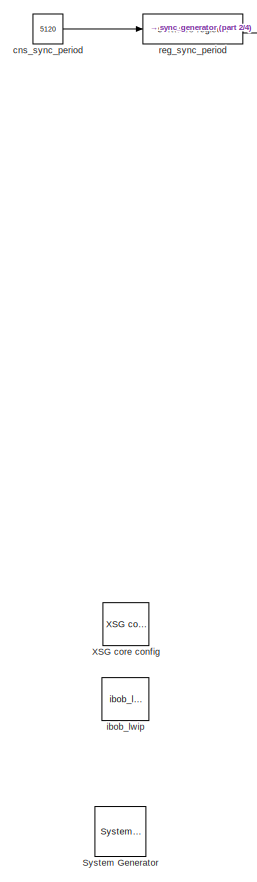
[diagram: root canvas - part 1/4, top left region]
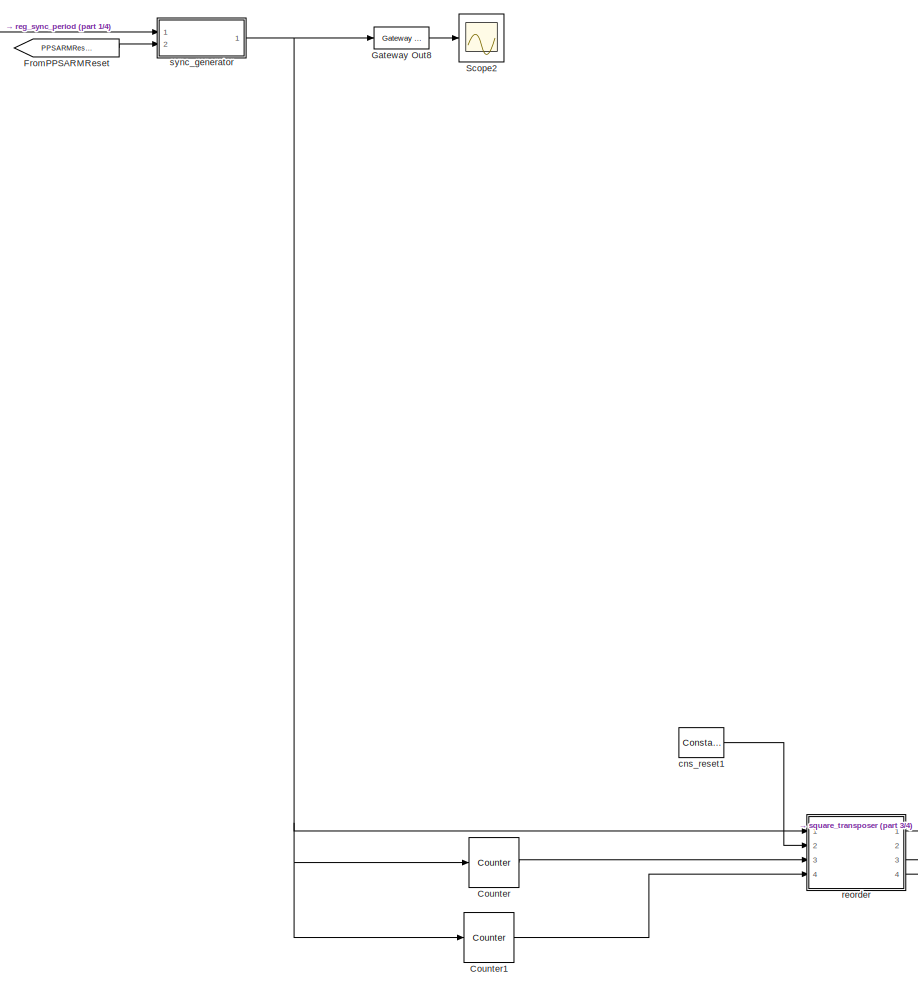
[diagram: root canvas - part 2/4, top center region]
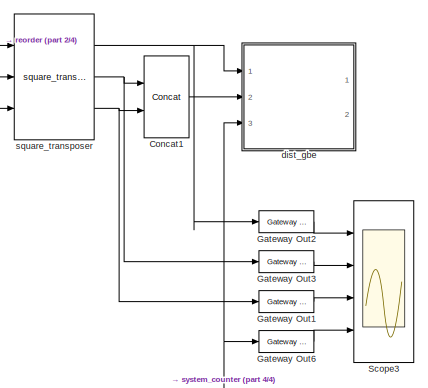
[diagram: root canvas - part 3/4, middle right region]
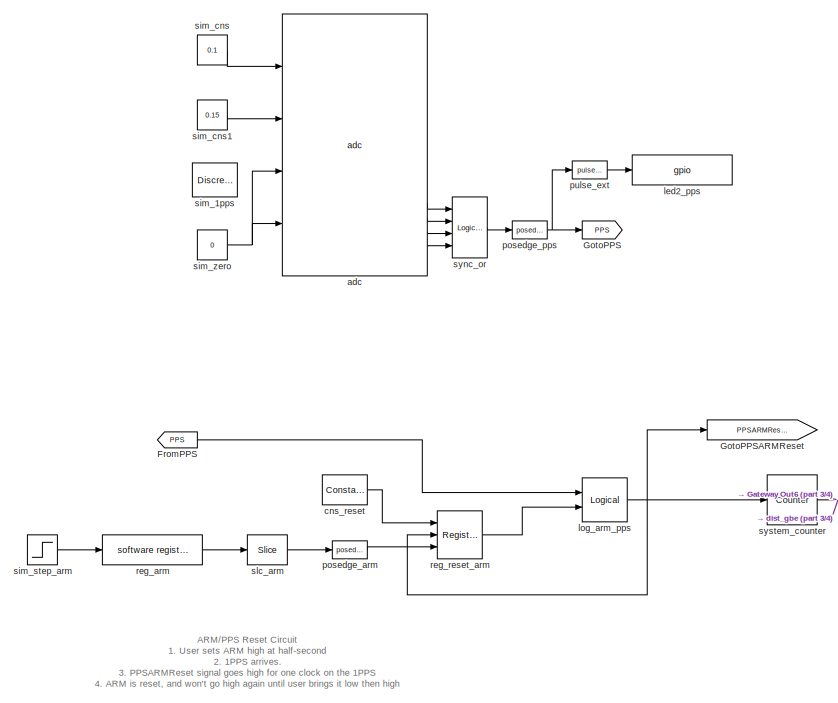
[diagram: root canvas - part 4/4, bottom left region]
MODEL counter_16ip_16ch
KIND model
BLOCK [Reference]  System Generator  REF=xbsIndex_r3/ System Generator
  AttributesFormatString = System\\nGenerator
  Ports = []
  ShowPortLabels = on
  SourceBlock = xbsIndex_r3/ System Generator
  SourceType = Xilinx System Generator
  Tag = genX
  UserData = DataTag0
  UserDataPersistent = on
  core_generation = According to Block Masks
  dbl_ovrd = According to Block Masks
  deprecated_control = off
  directory = ./counter_16ip_16ch/sysgen
  eval_field = 0
  incr_netlist = off
  package = ff1152
  part = xc2vp50
  run_coregen = off
  simulink_period = 1
  speed = -7
  synthesis_tool = XST
  sysclk_period = 5
  testbench = off
  trim_vbits = Everywhere in SubSystem
  xilinxfamily = Virtex2P
BLOCK [Reference] Concat1  REF=xbsIndex_r3/Concat
  Ports = [2, 1]
  SourceBlock = xbsIndex_r3/Concat
  SourceType = Xilinx Bus Concatenator
  dbl_ovrd = off
  explicit_period = off
  num_inputs = 2
  period = 1
BLOCK [Reference] Counter  REF=xbsIndex_r3/Counter
  Ports = [1, 1]
  SourceBlock = xbsIndex_r3/Counter
  SourceType = Xilinx Counter Block
  arith_type = Unsigned
  bin_pt = 0
  cnt_by_val = 2
  cnt_to = 14
  cnt_type = Count Limited
  dbl_ovrd = off
  en = off
  explicit_period = on
  gen_core = off
  load_pin = off
  n_bits = 32
  operation = Up
  period = 1
  rst = on
  show_param = off
  start_count = 0
  use_rpm = on
  xl_area = [0, 0, 0, 0, 0, 0, 0]
  xl_use_area = off
BLOCK [Reference] Counter1  REF=xbsIndex_r3/Counter
  Ports = [1, 1]
  SourceBlock = xbsIndex_r3/Counter
  SourceType = Xilinx Counter Block
  arith_type = Unsigned
  bin_pt = 0
  cnt_by_val = 2
  cnt_to = 15
  cnt_type = Count Limited
  dbl_ovrd = off
  en = off
  explicit_period = on
  gen_core = off
  load_pin = off
  n_bits = 32
  operation = Up
  period = 1
  rst = on
  show_param = off
  start_count = 1
  use_rpm = on
  xl_area = [0, 0, 0, 0, 0, 0, 0]
  xl_use_area = off
BLOCK [From] FromPPS
  CloseFcn = tagdialog Close
  GotoTag = PPS
BLOCK [From] FromPPSARMReset
  CloseFcn = tagdialog Close
  GotoTag = PPSARMReset
BLOCK [Reference] Gateway Out1  REF=xbsIndex_r3/Gateway Out
  LOCs = {}
  Ports = [1, 1]
  SourceBlock = xbsIndex_r3/Gateway Out
  SourceType = Xilinx Gateway Out
  arith_type = Boolean
  bin_pt = 6
  hdl_port = on
  locs_specified = off
  nbits = 8
  needs_fixed_name = off
  output_type = Double
  overflow = Wrap
  quantization = Truncate
  show_param = off
  timing_constraint = None
  xl_area = [0, 0, 0, 0, 0, 0, 0]
  xl_use_area = off
BLOCK [Reference] Gateway Out2  REF=xbsIndex_r3/Gateway Out
  LOCs = {}
  Ports = [1, 1]
  SourceBlock = xbsIndex_r3/Gateway Out
  SourceType = Xilinx Gateway Out
  arith_type = Boolean
  bin_pt = 6
  hdl_port = on
  locs_specified = off
  nbits = 8
  needs_fixed_name = off
  output_type = Double
  overflow = Wrap
  quantization = Truncate
  show_param = off
  timing_constraint = None
  xl_area = [0, 0, 0, 0, 0, 0, 0]
  xl_use_area = off
BLOCK [Reference] Gateway Out3  REF=xbsIndex_r3/Gateway Out
  LOCs = {}
  Ports = [1, 1]
  SourceBlock = xbsIndex_r3/Gateway Out
  SourceType = Xilinx Gateway Out
  arith_type = Boolean
  bin_pt = 6
  hdl_port = on
  locs_specified = off
  nbits = 8
  needs_fixed_name = off
  output_type = Double
  overflow = Wrap
  quantization = Truncate
  show_param = off
  timing_constraint = None
  xl_area = [0, 0, 0, 0, 0, 0, 0]
  xl_use_area = off
BLOCK [Reference] Gateway Out6  REF=xbsIndex_r3/Gateway Out
  LOCs = {}
  Ports = [1, 1]
  SourceBlock = xbsIndex_r3/Gateway Out
  SourceType = Xilinx Gateway Out
  arith_type = Boolean
  bin_pt = 6
  hdl_port = on
  locs_specified = off
  nbits = 8
  needs_fixed_name = off
  output_type = Double
  overflow = Wrap
  quantization = Truncate
  show_param = off
  timing_constraint = None
  xl_area = [0, 0, 0, 0, 0, 0, 0]
  xl_use_area = off
BLOCK [Reference] Gateway Out8  REF=xbsIndex_r3/Gateway Out
  LOCs = {}
  Ports = [1, 1]
  SourceBlock = xbsIndex_r3/Gateway Out
  SourceType = Xilinx Gateway Out
  arith_type = Boolean
  bin_pt = 6
  hdl_port = on
  locs_specified = off
  nbits = 8
  needs_fixed_name = off
  output_type = Double
  overflow = Wrap
  quantization = Truncate
  show_param = off
  timing_constraint = None
  xl_area = [0, 0, 0, 0, 0, 0, 0]
  xl_use_area = off
BLOCK [Goto] GotoPPS
  GotoTag = PPS
  TagVisibility = local
BLOCK [Goto] GotoPPSARMReset
  GotoTag = PPSARMReset
  TagVisibility = local
BLOCK [Scope] Scope2
  DataFormat = StructureWithTime
  LimitDataPoints = off
  NumInputPorts = 1
  Ports = [1]
  SaveName = ScopeData3
  YMax = 1
  YMin = -1
  ZoomMode = xonly
BLOCK [Scope] Scope3
  DataFormat = StructureWithTime
  LimitDataPoints = off
  NumInputPorts = 4
  Ports = [4]
  SaveName = ScopeData5
  TimeRange = 6000
  YMax = 1~65~1~65
  YMin = 0~0~-1~0
  ZoomMode = xonly
BLOCK [Reference] XSG core config  REF=xps_library/XSG core config  (lib defined in mdl_00b5cec29cd0, mdl_02ab6ecaa3d1, +5 more)
  Ports = []
  ShowPortLabels = on
  SourceBlock = xps_library/XSG core config
  SourceType = xsg core config
  Tag = xps:xsg
  clk_rate = 200
  clk_src = adc0_clk
  gpio_clk_bit_index = 0
  gpio_clk_io_group = iBOB:sma
  hw_sys = iBOB
  ibob_linux = off
  mpc_type = powerpc405
  sample_period = 1
  synthesis_tool = XST
BLOCK [Reference] adc  REF=xps_library/adc  (lib defined in mdl_00b5cec29cd0, mdl_02ab6ecaa3d1, +5 more)
  Ports = [4, 17]
  ShowPortLabels = on
  SourceBlock = xps_library/adc
  SourceType = adc
  Tag = xps:adc
  adc_brd = iBOB:adc0
  adc_clk_rate = 800
  adc_interleave = off
  sample_period = 1
BLOCK [Reference] cns_reset  REF=xbsIndex_r3/Constant
  Ports = [0, 1]
  SourceBlock = xbsIndex_r3/Constant
  SourceType = Xilinx Constant Block
  arith_type = Boolean
  bin_pt = 0
  carry = CIN
  const = 1
  dbl_ovrd = off
  equ = P=C
  explicit_period = on
  inp1 = P
  inp2 = PCIN>>17
  iostate = 0
  n_bits = 1
  opr = +
  opselect = C
  period = 1
BLOCK [Reference] cns_reset1  REF=xbsIndex_r3/Constant
  Ports = [0, 1]
  SourceBlock = xbsIndex_r3/Constant
  SourceType = Xilinx Constant Block
  arith_type = Boolean
  bin_pt = 0
  carry = CIN
  const = 1
  dbl_ovrd = off
  equ = P=C
  explicit_period = on
  inp1 = P
  inp2 = PCIN>>17
  iostate = 0
  n_bits = 1
  opr = +
  opselect = C
  period = 1
BLOCK [Constant] cns_sync_period
  Value = 5120
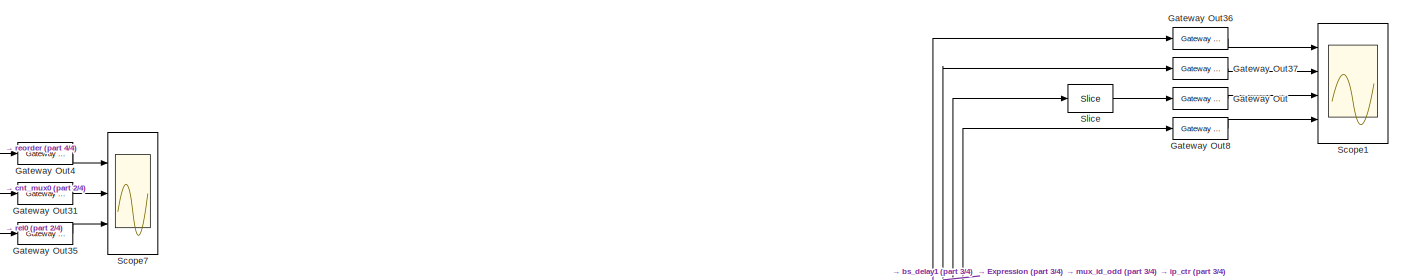
[diagram: dist_gbe - part 1/4, top right region]
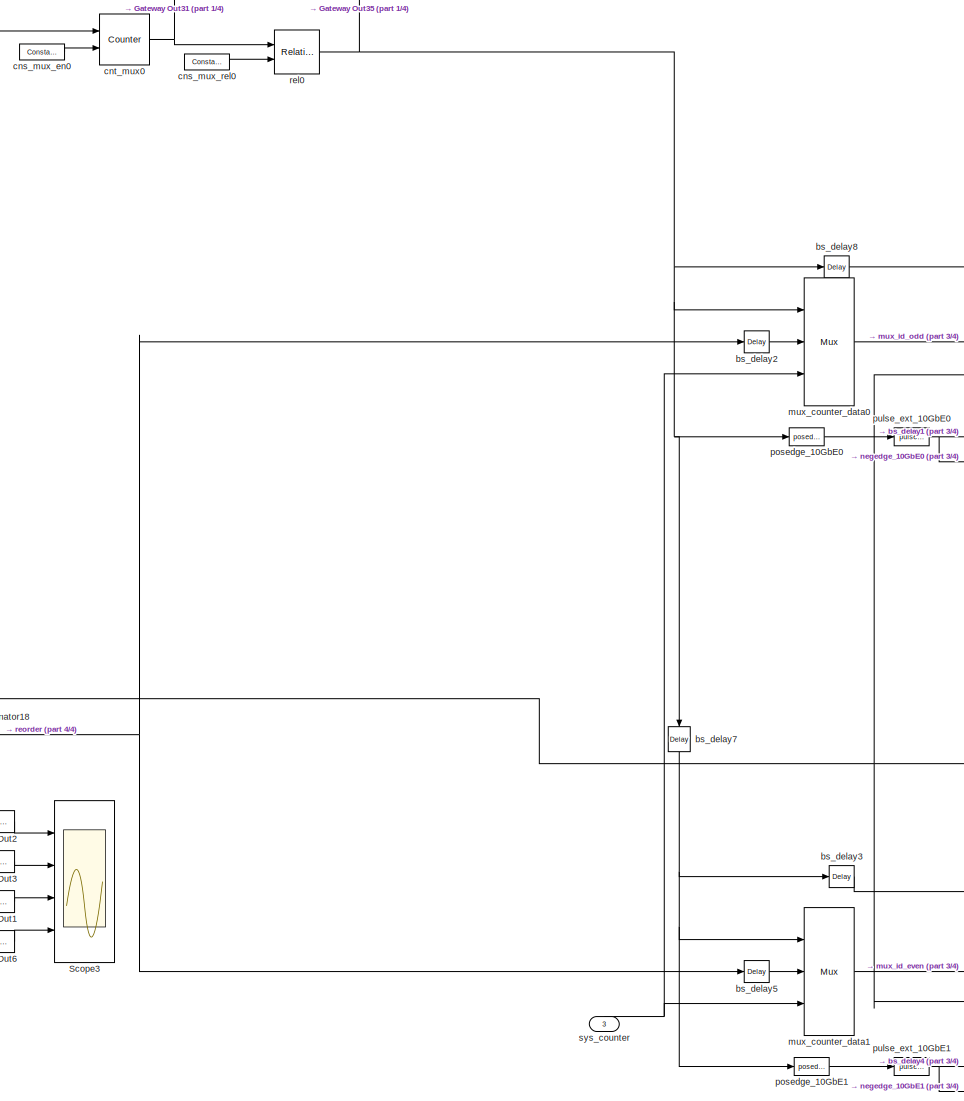
[diagram: dist_gbe - part 2/4, central region]
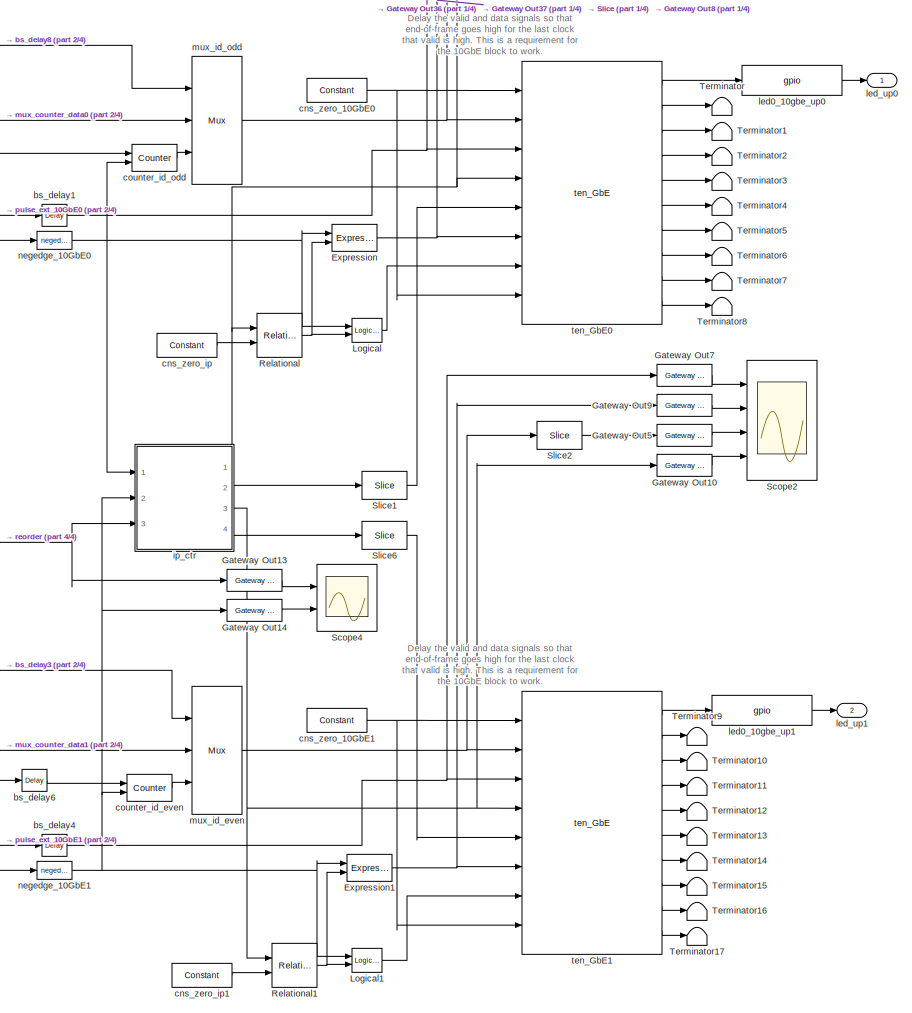
[diagram: dist_gbe - part 3/4, middle right region]
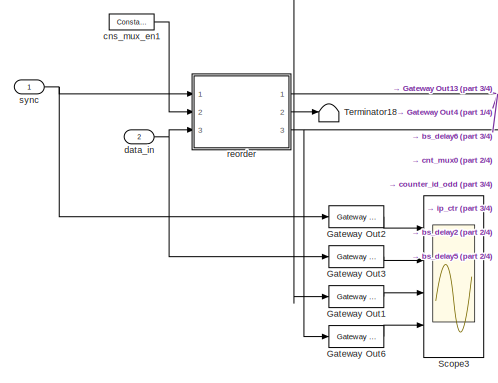
[diagram: dist_gbe - part 4/4, bottom left region]
BLOCK [SubSystem] dist_gbe
  AttributesFormatString = IPs=16\norder=5
  MaskCallbackString = ||
  MaskEnableString = on,on,on
  MaskIconFrame = on
  MaskIconOpaque = on
  MaskIconRotate = none
  MaskIconUnits = autoscale
  MaskInitialization = dist_gbe_init(gcb,...\n    'numcomputers', numcomputers,...\n    'numsamples', numsamples,...\n    'samplesperpacket', samplesperpacket)
  MaskPromptString = Num IPs (Must be power of 2)|Samples per spectrum (Number of clock cycles to generate 1 spectrum)|Samples per packet (Number of samples to put in a packet)
  MaskStyleString = edit,edit,edit
  MaskTabNameString = ,,
  MaskToolTipString = on,on,on
  MaskTunableValueString = off,off,off
  MaskType = dist_gbe
  MaskValueString = 16|16|64
  MaskVarAliasString = ,,
  MaskVariables = numcomputers=@1;numsamples=@2;samplesperpacket=@3;
  MaskVisibilityString = on,on,on
  MinAlgLoopOccurrences = off
  Ports = [3, 2]
  RTWSystemCode = Auto
  TreatAsAtomicUnit = off
  UserData = DataTag1
  UserDataPersistent = on
BLOCK [Reference] dist_gbe/Expression  REF=xbsIndex_r3/Expression
  Ports = [2, 1]
  SourceBlock = xbsIndex_r3/Expression
  SourceType = Xilinx Expression Block
  align_bp = on
  arith_type = Unsigned
  bin_pt = 2
  dbl_ovrd = off
  en = off
  explicit_period = off
  expression = a & ~b
  latency = 0
  n_bits = 8
  period = 1
  precision = Full
  show_param = off
  xl_area = [0, 0, 0, 0, 0, 0, 0]
  xl_use_area = off
BLOCK [Reference] dist_gbe/Expression1  REF=xbsIndex_r3/Expression
  Ports = [2, 1]
  SourceBlock = xbsIndex_r3/Expression
  SourceType = Xilinx Expression Block
  align_bp = on
  arith_type = Unsigned
  bin_pt = 2
  dbl_ovrd = off
  en = off
  explicit_period = off
  expression = a & ~b
  latency = 0
  n_bits = 8
  period = 1
  precision = Full
  show_param = off
  xl_area = [0, 0, 0, 0, 0, 0, 0]
  xl_use_area = off
BLOCK [Reference] dist_gbe/Gateway Out  REF=xbsIndex_r3/Gateway Out
  LOCs = {}
  Ports = [1, 1]
  SourceBlock = xbsIndex_r3/Gateway Out
  SourceType = Xilinx Gateway Out
  arith_type = Boolean
  bin_pt = 6
  hdl_port = on
  locs_specified = off
  nbits = 8
  needs_fixed_name = off
  output_type = Double
  overflow = Wrap
  quantization = Truncate
  show_param = off
  timing_constraint = None
  xl_area = [0, 0, 0, 0, 0, 0, 0]
  xl_use_area = off
BLOCK [Reference] dist_gbe/Gateway Out1  REF=xbsIndex_r3/Gateway Out
  LOCs = {}
  Ports = [1, 1]
  SourceBlock = xbsIndex_r3/Gateway Out
  SourceType = Xilinx Gateway Out
  arith_type = Boolean
  bin_pt = 6
  hdl_port = on
  locs_specified = off
  nbits = 8
  needs_fixed_name = off
  output_type = Double
  overflow = Wrap
  quantization = Truncate
  show_param = off
  timing_constraint = None
  xl_area = [0, 0, 0, 0, 0, 0, 0]
  xl_use_area = off
BLOCK [Reference] dist_gbe/Gateway Out10  REF=xbsIndex_r3/Gateway Out
  LOCs = {}
  Ports = [1, 1]
  SourceBlock = xbsIndex_r3/Gateway Out
  SourceType = Xilinx Gateway Out
  arith_type = Boolean
  bin_pt = 6
  hdl_port = on
  locs_specified = off
  nbits = 8
  needs_fixed_name = off
  output_type = Double
  overflow = Wrap
  quantization = Truncate
  show_param = off
  timing_constraint = None
  xl_area = [0, 0, 0, 0, 0, 0, 0]
  xl_use_area = off
BLOCK [Reference] dist_gbe/Gateway Out13  REF=xbsIndex_r3/Gateway Out
  LOCs = {}
  Ports = [1, 1]
  SourceBlock = xbsIndex_r3/Gateway Out
  SourceType = Xilinx Gateway Out
  arith_type = Boolean
  bin_pt = 6
  hdl_port = on
  locs_specified = off
  nbits = 8
  needs_fixed_name = off
  output_type = Double
  overflow = Wrap
  quantization = Truncate
  show_param = off
  timing_constraint = None
  xl_area = [0, 0, 0, 0, 0, 0, 0]
  xl_use_area = off
BLOCK [Reference] dist_gbe/Gateway Out14  REF=xbsIndex_r3/Gateway Out
  LOCs = {}
  Ports = [1, 1]
  SourceBlock = xbsIndex_r3/Gateway Out
  SourceType = Xilinx Gateway Out
  arith_type = Boolean
  bin_pt = 6
  hdl_port = on
  locs_specified = off
  nbits = 8
  needs_fixed_name = off
  output_type = Double
  overflow = Wrap
  quantization = Truncate
  show_param = off
  timing_constraint = None
  xl_area = [0, 0, 0, 0, 0, 0, 0]
  xl_use_area = off
BLOCK [Reference] dist_gbe/Gateway Out2  REF=xbsIndex_r3/Gateway Out
  LOCs = {}
  Ports = [1, 1]
  SourceBlock = xbsIndex_r3/Gateway Out
  SourceType = Xilinx Gateway Out
  arith_type = Boolean
  bin_pt = 6
  hdl_port = on
  locs_specified = off
  nbits = 8
  needs_fixed_name = off
  output_type = Double
  overflow = Wrap
  quantization = Truncate
  show_param = off
  timing_constraint = None
  xl_area = [0, 0, 0, 0, 0, 0, 0]
  xl_use_area = off
BLOCK [Reference] dist_gbe/Gateway Out3  REF=xbsIndex_r3/Gateway Out
  LOCs = {}
  Ports = [1, 1]
  SourceBlock = xbsIndex_r3/Gateway Out
  SourceType = Xilinx Gateway Out
  arith_type = Boolean
  bin_pt = 6
  hdl_port = on
  locs_specified = off
  nbits = 8
  needs_fixed_name = off
  output_type = Double
  overflow = Wrap
  quantization = Truncate
  show_param = off
  timing_constraint = None
  xl_area = [0, 0, 0, 0, 0, 0, 0]
  xl_use_area = off
BLOCK [Reference] dist_gbe/Gateway Out31  REF=xbsIndex_r3/Gateway Out
  LOCs = {}
  Ports = [1, 1]
  SourceBlock = xbsIndex_r3/Gateway Out
  SourceType = Xilinx Gateway Out
  arith_type = Boolean
  bin_pt = 6
  hdl_port = on
  locs_specified = off
  nbits = 8
  needs_fixed_name = off
  output_type = Double
  overflow = Wrap
  quantization = Truncate
  show_param = off
  timing_constraint = None
  xl_area = [0, 0, 0, 0, 0, 0, 0]
  xl_use_area = off
BLOCK [Reference] dist_gbe/Gateway Out35  REF=xbsIndex_r3/Gateway Out
  LOCs = {}
  Ports = [1, 1]
  SourceBlock = xbsIndex_r3/Gateway Out
  SourceType = Xilinx Gateway Out
  arith_type = Boolean
  bin_pt = 6
  hdl_port = on
  locs_specified = off
  nbits = 8
  needs_fixed_name = off
  output_type = Double
  overflow = Wrap
  quantization = Truncate
  show_param = off
  timing_constraint = None
  xl_area = [0, 0, 0, 0, 0, 0, 0]
  xl_use_area = off
BLOCK [Reference] dist_gbe/Gateway Out36  REF=xbsIndex_r3/Gateway Out
  LOCs = {}
  Ports = [1, 1]
  SourceBlock = xbsIndex_r3/Gateway Out
  SourceType = Xilinx Gateway Out
  arith_type = Boolean
  bin_pt = 6
  hdl_port = on
  locs_specified = off
  nbits = 8
  needs_fixed_name = off
  output_type = Double
  overflow = Wrap
  quantization = Truncate
  show_param = off
  timing_constraint = None
  xl_area = [0, 0, 0, 0, 0, 0, 0]
  xl_use_area = off
BLOCK [Reference] dist_gbe/Gateway Out37  REF=xbsIndex_r3/Gateway Out
  LOCs = {}
  Ports = [1, 1]
  SourceBlock = xbsIndex_r3/Gateway Out
  SourceType = Xilinx Gateway Out
  arith_type = Boolean
  bin_pt = 6
  hdl_port = on
  locs_specified = off
  nbits = 8
  needs_fixed_name = off
  output_type = Double
  overflow = Wrap
  quantization = Truncate
  show_param = off
  timing_constraint = None
  xl_area = [0, 0, 0, 0, 0, 0, 0]
  xl_use_area = off
BLOCK [Reference] dist_gbe/Gateway Out4  REF=xbsIndex_r3/Gateway Out
  LOCs = {}
  Ports = [1, 1]
  SourceBlock = xbsIndex_r3/Gateway Out
  SourceType = Xilinx Gateway Out
  arith_type = Boolean
  bin_pt = 6
  hdl_port = on
  locs_specified = off
  nbits = 8
  needs_fixed_name = off
  output_type = Double
  overflow = Wrap
  quantization = Truncate
  show_param = off
  timing_constraint = None
  xl_area = [0, 0, 0, 0, 0, 0, 0]
  xl_use_area = off
BLOCK [Reference] dist_gbe/Gateway Out5  REF=xbsIndex_r3/Gateway Out
  LOCs = {}
  Ports = [1, 1]
  SourceBlock = xbsIndex_r3/Gateway Out
  SourceType = Xilinx Gateway Out
  arith_type = Boolean
  bin_pt = 6
  hdl_port = on
  locs_specified = off
  nbits = 8
  needs_fixed_name = off
  output_type = Double
  overflow = Wrap
  quantization = Truncate
  show_param = off
  timing_constraint = None
  xl_area = [0, 0, 0, 0, 0, 0, 0]
  xl_use_area = off
BLOCK [Reference] dist_gbe/Gateway Out6  REF=xbsIndex_r3/Gateway Out
  LOCs = {}
  Ports = [1, 1]
  SourceBlock = xbsIndex_r3/Gateway Out
  SourceType = Xilinx Gateway Out
  arith_type = Boolean
  bin_pt = 6
  hdl_port = on
  locs_specified = off
  nbits = 8
  needs_fixed_name = off
  output_type = Double
  overflow = Wrap
  quantization = Truncate
  show_param = off
  timing_constraint = None
  xl_area = [0, 0, 0, 0, 0, 0, 0]
  xl_use_area = off
BLOCK [Reference] dist_gbe/Gateway Out7  REF=xbsIndex_r3/Gateway Out
  LOCs = {}
  Ports = [1, 1]
  SourceBlock = xbsIndex_r3/Gateway Out
  SourceType = Xilinx Gateway Out
  arith_type = Boolean
  bin_pt = 6
  hdl_port = on
  locs_specified = off
  nbits = 8
  needs_fixed_name = off
  output_type = Double
  overflow = Wrap
  quantization = Truncate
  show_param = off
  timing_constraint = None
  xl_area = [0, 0, 0, 0, 0, 0, 0]
  xl_use_area = off
BLOCK [Reference] dist_gbe/Gateway Out8  REF=xbsIndex_r3/Gateway Out
  LOCs = {}
  Ports = [1, 1]
  SourceBlock = xbsIndex_r3/Gateway Out
  SourceType = Xilinx Gateway Out
  arith_type = Boolean
  bin_pt = 6
  hdl_port = on
  locs_specified = off
  nbits = 8
  needs_fixed_name = off
  output_type = Double
  overflow = Wrap
  quantization = Truncate
  show_param = off
  timing_constraint = None
  xl_area = [0, 0, 0, 0, 0, 0, 0]
  xl_use_area = off
BLOCK [Reference] dist_gbe/Gateway Out9  REF=xbsIndex_r3/Gateway Out
  LOCs = {}
  Ports = [1, 1]
  SourceBlock = xbsIndex_r3/Gateway Out
  SourceType = Xilinx Gateway Out
  arith_type = Boolean
  bin_pt = 6
  hdl_port = on
  locs_specified = off
  nbits = 8
  needs_fixed_name = off
  output_type = Double
  overflow = Wrap
  quantization = Truncate
  show_param = off
  timing_constraint = None
  xl_area = [0, 0, 0, 0, 0, 0, 0]
  xl_use_area = off
BLOCK [Reference] dist_gbe/Logical  REF=xbsIndex_r3/Logical
  Ports = [2, 1]
  SourceBlock = xbsIndex_r3/Logical
  SourceType = Xilinx Logical Block
  align_bp = on
  arith_type = Unsigned
  bin_pt = 2
  dbl_ovrd = off
  en = off
  explicit_period = off
  inputs = 2
  latency = 0
  logical_function = AND
  n_bits = 8
  period = 1
  precision = Full
  show_param = off
  xl_area = [0, 0, 0, 0, 0, 0, 0]
  xl_use_area = off
BLOCK [Reference] dist_gbe/Logical1  REF=xbsIndex_r3/Logical
  Ports = [2, 1]
  SourceBlock = xbsIndex_r3/Logical
  SourceType = Xilinx Logical Block
  align_bp = on
  arith_type = Unsigned
  bin_pt = 2
  dbl_ovrd = off
  en = off
  explicit_period = off
  inputs = 2
  latency = 0
  logical_function = AND
  n_bits = 8
  period = 1
  precision = Full
  show_param = off
  xl_area = [0, 0, 0, 0, 0, 0, 0]
  xl_use_area = off
BLOCK [Reference] dist_gbe/Relational  REF=xbsIndex_r3/Relational
  Ports = [2, 1]
  SourceBlock = xbsIndex_r3/Relational
  SourceType = Xilinx Relational Block
  dbl_ovrd = off
  en = off
  explicit_period = off
  latency = 1
  mode = a=b
  period = 1
  show_param = off
  xl_area = [0, 0, 0, 0, 0, 0, 0]
  xl_use_area = off
BLOCK [Reference] dist_gbe/Relational1  REF=xbsIndex_r3/Relational
  Ports = [2, 1]
  SourceBlock = xbsIndex_r3/Relational
  SourceType = Xilinx Relational Block
  dbl_ovrd = off
  en = off
  explicit_period = off
  latency = 1
  mode = a=b
  period = 1
  show_param = off
  xl_area = [0, 0, 0, 0, 0, 0, 0]
  xl_use_area = off
BLOCK [Scope] dist_gbe/Scope1
  DataFormat = StructureWithTime
  LimitDataPoints = off
  NumInputPorts = 4
  Ports = [4]
  TimeRange = 10000
  YMax = 1~1~16~4016
  YMin = 0~0~0~4000
  ZoomMode = xonly
BLOCK [Scope] dist_gbe/Scope2
  DataFormat = StructureWithTime
  LimitDataPoints = off
  NumInputPorts = 4
  Ports = [4]
  SaveName = ScopeData2
  TimeRange = 10000
  YMax = 1~1~10000~6.5e+010
  YMin = 0~0~0~0
  ZoomMode = xonly
BLOCK [Scope] dist_gbe/Scope3
  DataFormat = StructureWithTime
  LimitDataPoints = off
  NumInputPorts = 4
  Ports = [4]
  SaveName = ScopeData4
  TimeRange = 6000
  YMax = 1~65~1~65
  YMin = 0~0~-1~0
  ZoomMode = xonly
BLOCK [Scope] dist_gbe/Scope4
  DataFormat = StructureWithTime
  LimitDataPoints = off
  NumInputPorts = 2
  Ports = [2]
  SaveName = ScopeData6
  TimeRange = 10000
  YMax = 1~1
  YMin = 0~0
  ZoomMode = xonly
BLOCK [Scope] dist_gbe/Scope7
  DataFormat = StructureWithTime
  LimitDataPoints = off
  NumInputPorts = 3
  Ports = [3]
  SaveName = ScopeData1
  YMax = 1~275~1
  YMin = 0~0~0
  ZoomMode = xonly
BLOCK [Reference] dist_gbe/Slice  REF=xbsIndex_r3/Slice
  Ports = [1, 1]
  SourceBlock = xbsIndex_r3/Slice
  SourceType = Xilinx Slice Block
  base0 = LSB of Input
  base1 = MSB of Input
  bit0 = 0
  bit1 = 0
  boolean_output = off
  dbl_ovrd = off
  explicit_period = off
  mode = Lower Bit Location + Width
  nbits = 5
  period = 1
BLOCK [Reference] dist_gbe/Slice1  REF=xbsIndex_r3/Slice
  Ports = [1, 1]
  SourceBlock = xbsIndex_r3/Slice
  SourceType = Xilinx Slice Block
  base0 = LSB of Input
  base1 = MSB of Input
  bit0 = 0
  bit1 = 0
  boolean_output = off
  dbl_ovrd = off
  explicit_period = off
  mode = Lower Bit Location + Width
  nbits = 16
  period = 1
BLOCK [Reference] dist_gbe/Slice2  REF=xbsIndex_r3/Slice
  Ports = [1, 1]
  SourceBlock = xbsIndex_r3/Slice
  SourceType = Xilinx Slice Block
  base0 = LSB of Input
  base1 = MSB of Input
  bit0 = 0
  bit1 = 0
  boolean_output = off
  dbl_ovrd = off
  explicit_period = off
  mode = Lower Bit Location + Width
  nbits = 5
  period = 1
BLOCK [Reference] dist_gbe/Slice6  REF=xbsIndex_r3/Slice
  Ports = [1, 1]
  SourceBlock = xbsIndex_r3/Slice
  SourceType = Xilinx Slice Block
  base0 = LSB of Input
  base1 = MSB of Input
  bit0 = 0
  bit1 = 0
  boolean_output = off
  dbl_ovrd = off
  explicit_period = off
  mode = Lower Bit Location + Width
  nbits = 16
  period = 1
BLOCK [Terminator] dist_gbe/Terminator
BLOCK [Terminator] dist_gbe/Terminator1
BLOCK [Terminator] dist_gbe/Terminator10
BLOCK [Terminator] dist_gbe/Terminator11
BLOCK [Terminator] dist_gbe/Terminator12
BLOCK [Terminator] dist_gbe/Terminator13
BLOCK [Terminator] dist_gbe/Terminator14
BLOCK [Terminator] dist_gbe/Terminator15
BLOCK [Terminator] dist_gbe/Terminator16
BLOCK [Terminator] dist_gbe/Terminator17
BLOCK [Terminator] dist_gbe/Terminator18
BLOCK [Terminator] dist_gbe/Terminator2
BLOCK [Terminator] dist_gbe/Terminator3
BLOCK [Terminator] dist_gbe/Terminator4
BLOCK [Terminator] dist_gbe/Terminator5
BLOCK [Terminator] dist_gbe/Terminator6
BLOCK [Terminator] dist_gbe/Terminator7
BLOCK [Terminator] dist_gbe/Terminator8
BLOCK [Terminator] dist_gbe/Terminator9
BLOCK [Reference] dist_gbe/bs_delay1  REF=xbsIndex_r3/Delay
  Ports = [1, 1]
  SourceBlock = xbsIndex_r3/Delay
  SourceType = Xilinx Delay Block
  accept_only_valid = off
  dbl_ovrd = off
  en = off
  explicit_period = on
  init_zero = on
  latency = 1
  period = 1
  reg_retiming = off
  show_param = off
  xl_area = [0, 0, 0, 0, 0, 0, 0]
  xl_use_area = off
BLOCK [Reference] dist_gbe/bs_delay2  REF=xbsIndex_r3/Delay
  Ports = [1, 1]
  SourceBlock = xbsIndex_r3/Delay
  SourceType = Xilinx Delay Block
  accept_only_valid = off
  dbl_ovrd = off
  en = off
  explicit_period = on
  init_zero = on
  latency = 1
  period = 1
  reg_retiming = off
  show_param = off
  xl_area = [0, 0, 0, 0, 0, 0, 0]
  xl_use_area = off
BLOCK [Reference] dist_gbe/bs_delay3  REF=xbsIndex_r3/Delay
  Ports = [1, 1]
  SourceBlock = xbsIndex_r3/Delay
  SourceType = Xilinx Delay Block
  accept_only_valid = off
  dbl_ovrd = off
  en = off
  explicit_period = on
  init_zero = on
  latency = 2
  period = 1
  reg_retiming = off
  show_param = off
  xl_area = [0, 0, 0, 0, 0, 0, 0]
  xl_use_area = off
BLOCK [Reference] dist_gbe/bs_delay4  REF=xbsIndex_r3/Delay
  Ports = [1, 1]
  SourceBlock = xbsIndex_r3/Delay
  SourceType = Xilinx Delay Block
  accept_only_valid = off
  dbl_ovrd = off
  en = off
  explicit_period = on
  init_zero = on
  latency = 1
  period = 1
  reg_retiming = off
  show_param = off
  xl_area = [0, 0, 0, 0, 0, 0, 0]
  xl_use_area = off
BLOCK [Reference] dist_gbe/bs_delay5  REF=xbsIndex_r3/Delay
  Ports = [1, 1]
  SourceBlock = xbsIndex_r3/Delay
  SourceType = Xilinx Delay Block
  accept_only_valid = off
  dbl_ovrd = off
  en = off
  explicit_period = on
  init_zero = on
  latency = 1
  period = 1
  reg_retiming = off
  show_param = off
  xl_area = [0, 0, 0, 0, 0, 0, 0]
  xl_use_area = off
BLOCK [Reference] dist_gbe/bs_delay6  REF=xbsIndex_r3/Delay
  Ports = [1, 1]
  SourceBlock = xbsIndex_r3/Delay
  SourceType = Xilinx Delay Block
  accept_only_valid = off
  dbl_ovrd = off
  en = off
  explicit_period = on
  init_zero = on
  latency = 4
  period = 1
  reg_retiming = off
  show_param = off
  xl_area = [0, 0, 0, 0, 0, 0, 0]
  xl_use_area = off
BLOCK [Reference] dist_gbe/bs_delay7  REF=xbsIndex_r3/Delay
  Ports = [1, 1]
  SourceBlock = xbsIndex_r3/Delay
  SourceType = Xilinx Delay Block
  accept_only_valid = off
  dbl_ovrd = off
  en = off
  explicit_period = on
  init_zero = on
  latency = 64
  period = 1
  reg_retiming = off
  show_param = off
  xl_area = [0, 0, 0, 0, 0, 0, 0]
  xl_use_area = off
BLOCK [Reference] dist_gbe/bs_delay8  REF=xbsIndex_r3/Delay
  Ports = [1, 1]
  SourceBlock = xbsIndex_r3/Delay
  SourceType = Xilinx Delay Block
  accept_only_valid = off
  dbl_ovrd = off
  en = off
  explicit_period = on
  init_zero = on
  latency = 2
  period = 1
  reg_retiming = off
  show_param = off
  xl_area = [0, 0, 0, 0, 0, 0, 0]
  xl_use_area = off
BLOCK [Reference] dist_gbe/cns_mux_en0  REF=xbsIndex_r3/Constant
  Ports = [0, 1]
  SourceBlock = xbsIndex_r3/Constant
  SourceType = Xilinx Constant Block
  arith_type = Boolean
  bin_pt = 0
  carry = CIN
  const = 1
  dbl_ovrd = off
  equ = P=C
  explicit_period = on
  inp1 = P
  inp2 = PCIN>>17
  iostate = 0
  n_bits = 1
  opr = +
  opselect = C
  period = 1
BLOCK [Reference] dist_gbe/cns_mux_en1  REF=xbsIndex_r3/Constant
  Ports = [0, 1]
  SourceBlock = xbsIndex_r3/Constant
  SourceType = Xilinx Constant Block
  arith_type = Boolean
  bin_pt = 0
  carry = CIN
  const = 1
  dbl_ovrd = off
  equ = P=C
  explicit_period = on
  inp1 = P
  inp2 = PCIN>>17
  iostate = 0
  n_bits = 1
  opr = +
  opselect = C
  period = 1
BLOCK [Reference] dist_gbe/cns_mux_rel0  REF=xbsIndex_r3/Constant
  Ports = [0, 1]
  SourceBlock = xbsIndex_r3/Constant
  SourceType = Xilinx Constant Block
  arith_type = Unsigned
  bin_pt = 0
  carry = CIN
  const = 126
  dbl_ovrd = off
  equ = P=C
  explicit_period = on
  inp1 = P
  inp2 = PCIN>>17
  iostate = 0
  n_bits = 7
  opr = +
  opselect = C
  period = 1
BLOCK [Reference] dist_gbe/cns_zero_10GbE0  REF=xbsIndex_r3/Constant
  Ports = [0, 1]
  SourceBlock = xbsIndex_r3/Constant
  SourceType = Xilinx Constant Block
  arith_type = Boolean
  bin_pt = 0
  carry = CIN
  const = 0
  dbl_ovrd = off
  equ = P=C
  explicit_period = on
  inp1 = P
  inp2 = PCIN>>17
  iostate = 0
  n_bits = 32
  opr = +
  opselect = C
  period = 1
BLOCK [Reference] dist_gbe/cns_zero_10GbE1  REF=xbsIndex_r3/Constant
  Ports = [0, 1]
  SourceBlock = xbsIndex_r3/Constant
  SourceType = Xilinx Constant Block
  arith_type = Boolean
  bin_pt = 0
  carry = CIN
  const = 0
  dbl_ovrd = off
  equ = P=C
  explicit_period = on
  inp1 = P
  inp2 = PCIN>>17
  iostate = 0
  n_bits = 32
  opr = +
  opselect = C
  period = 1
BLOCK [Reference] dist_gbe/cns_zero_ip  REF=xbsIndex_r3/Constant
  Ports = [0, 1]
  SourceBlock = xbsIndex_r3/Constant
  SourceType = Xilinx Constant Block
  arith_type = Unsigned
  bin_pt = 0
  carry = CIN
  const = 0
  dbl_ovrd = off
  equ = P=C
  explicit_period = on
  inp1 = P
  inp2 = PCIN>>17
  iostate = 0
  n_bits = 32
  opr = +
  opselect = C
  period = 1
BLOCK [Reference] dist_gbe/cns_zero_ip1  REF=xbsIndex_r3/Constant
  Ports = [0, 1]
  SourceBlock = xbsIndex_r3/Constant
  SourceType = Xilinx Constant Block
  arith_type = Unsigned
  bin_pt = 0
  carry = CIN
  const = 0
  dbl_ovrd = off
  equ = P=C
  explicit_period = on
  inp1 = P
  inp2 = PCIN>>17
  iostate = 0
  n_bits = 32
  opr = +
  opselect = C
  period = 1
BLOCK [Reference] dist_gbe/cnt_mux0  REF=xbsIndex_r3/Counter
  Ports = [2, 1]
  SourceBlock = xbsIndex_r3/Counter
  SourceType = Xilinx Counter Block
  arith_type = Unsigned
  bin_pt = 0
  cnt_by_val = 1
  cnt_to = Inf
  cnt_type = Free Running
  dbl_ovrd = off
  en = on
  explicit_period = off
  gen_core = off
  load_pin = off
  n_bits = 7
  operation = Up
  period = 1
  rst = on
  show_param = off
  start_count = 0
  use_rpm = on
  xl_area = [0, 0, 0, 0, 0, 0, 0]
  xl_use_area = off
BLOCK [Reference] dist_gbe/counter_id_even  REF=xbsIndex_r3/Counter
  Ports = [2, 1]
  SourceBlock = xbsIndex_r3/Counter
  SourceType = Xilinx Counter Block
  arith_type = Unsigned
  bin_pt = 0
  cnt_by_val = 2
  cnt_to = 16
  cnt_type = Count Limited
  dbl_ovrd = off
  en = on
  explicit_period = off
  gen_core = off
  load_pin = off
  n_bits = 64
  operation = Up
  period = 1
  rst = on
  show_param = off
  start_count = 2
  use_rpm = on
  xl_area = [0, 0, 0, 0, 0, 0, 0]
  xl_use_area = off
BLOCK [Reference] dist_gbe/counter_id_odd  REF=xbsIndex_r3/Counter
  Ports = [2, 1]
  SourceBlock = xbsIndex_r3/Counter
  SourceType = Xilinx Counter Block
  arith_type = Unsigned
  bin_pt = 0
  cnt_by_val = 2
  cnt_to = 15
  cnt_type = Count Limited
  dbl_ovrd = off
  en = on
  explicit_period = off
  gen_core = off
  load_pin = off
  n_bits = 64
  operation = Up
  period = 1
  rst = on
  show_param = off
  start_count = 1
  use_rpm = on
  xl_area = [0, 0, 0, 0, 0, 0, 0]
  xl_use_area = off
BLOCK [Inport] dist_gbe/data_in
  IconDisplay = Port number
  LatchInput = off
  Port = 2
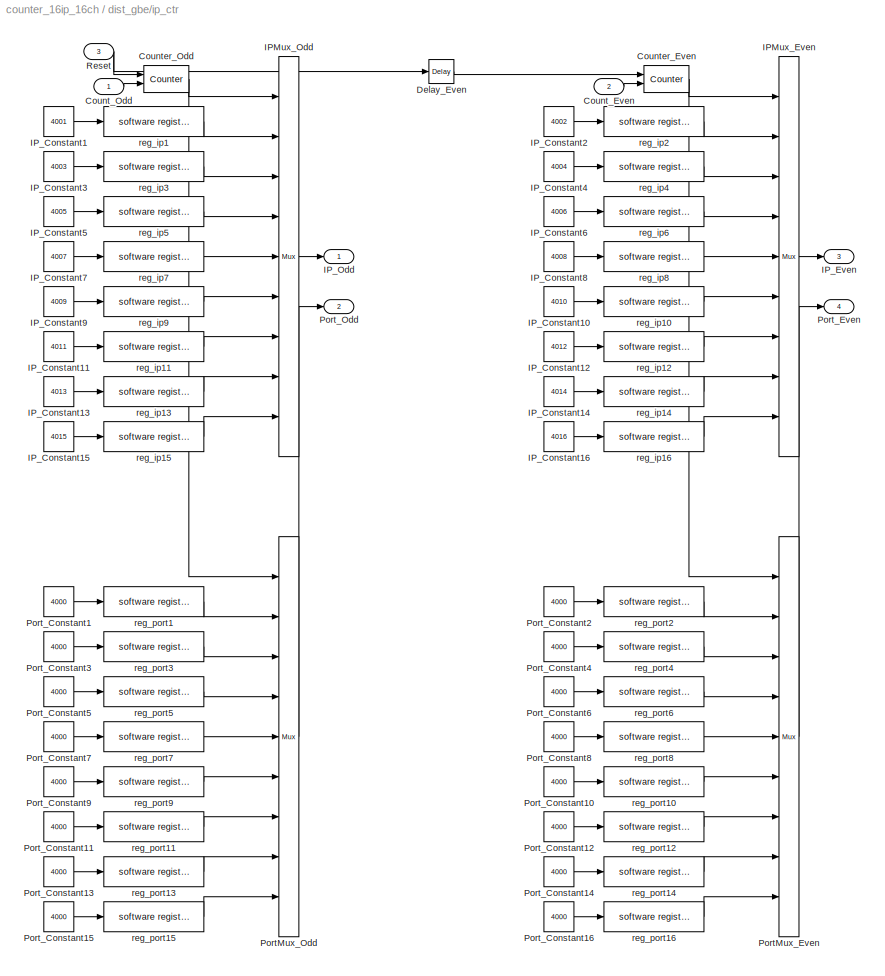
BLOCK [SubSystem] dist_gbe/ip_ctr
  AttributesFormatString = IPs=16
  MaskEnableString = on
  MaskIconFrame = on
  MaskIconOpaque = on
  MaskIconRotate = none
  MaskIconUnits = autoscale
  MaskInitialization = ip_ctr_init(gcb,...\n    'numcomputers',numcomputers)
  MaskPromptString = Num IPs (Must be power of 2)
  MaskStyleString = edit
  MaskToolTipString = on
  MaskTunableValueString = on
  MaskType = ip_ctr
  MaskValueString = 16
  MaskVariables = numcomputers=@1;
  MaskVisibilityString = on
  MinAlgLoopOccurrences = off
  Ports = [3, 4]
  RTWSystemCode = Auto
  TreatAsAtomicUnit = off
  UserData = DataTag2
  UserDataPersistent = on
BLOCK [Inport] dist_gbe/ip_ctr/Count_Even
  IconDisplay = Port number
  LatchInput = off
  Port = 2
BLOCK [Inport] dist_gbe/ip_ctr/Count_Odd
  IconDisplay = Port number
  LatchInput = off
  Port = 1
BLOCK [Reference] dist_gbe/ip_ctr/Counter_Even  REF=xbsIndex_r3/Counter
  Ports = [2, 1]
  SourceBlock = xbsIndex_r3/Counter
  SourceType = Xilinx Counter Block
  arith_type = Unsigned
  bin_pt = 0
  cnt_by_val = 1
  cnt_to = Inf
  cnt_type = Free Running
  dbl_ovrd = off
  en = on
  explicit_period = off
  gen_core = off
  load_pin = off
  n_bits = 3
  operation = Up
  period = 1
  rst = on
  show_param = off
  start_count = 0
  use_rpm = on
  xl_area = [0, 0, 0, 0, 0, 0, 0]
  xl_use_area = off
BLOCK [Reference] dist_gbe/ip_ctr/Counter_Odd  REF=xbsIndex_r3/Counter
  Ports = [2, 1]
  SourceBlock = xbsIndex_r3/Counter
  SourceType = Xilinx Counter Block
  arith_type = Unsigned
  bin_pt = 0
  cnt_by_val = 1
  cnt_to = Inf
  cnt_type = Free Running
  dbl_ovrd = off
  en = on
  explicit_period = off
  gen_core = off
  load_pin = off
  n_bits = 3
  operation = Up
  period = 1
  rst = on
  show_param = off
  start_count = 0
  use_rpm = on
  xl_area = [0, 0, 0, 0, 0, 0, 0]
  xl_use_area = off
BLOCK [Reference] dist_gbe/ip_ctr/Delay_Even  REF=xbsIndex_r3/Delay
  Ports = [1, 1]
  SourceBlock = xbsIndex_r3/Delay
  SourceType = Xilinx Delay Block
  accept_only_valid = off
  dbl_ovrd = off
  en = off
  explicit_period = off
  init_zero = on
  latency = 4
  period = 1
  reg_retiming = off
  show_param = off
  xl_area = [0, 0, 0, 0, 0, 0, 0]
  xl_use_area = off
BLOCK [Reference] dist_gbe/ip_ctr/IPMux_Even  REF=xbsIndex_r3/Mux
  Ports = [9, 1]
  SourceBlock = xbsIndex_r3/Mux
  SourceType = Xilinx Multiplexer Block
  arith_type = Signed  (2's comp)
  bin_pt = 2
  dbl_ovrd = off
  en = off
  explicit_period = off
  gen_core = off
  inputs = 8
  latency = 3
  mux_type = off
  n_bits = 8
  overflow = Wrap
  period = 1
  precision = Full
  quantization = Truncate
  show_param = off
  use_rpm = off
  xl_area = [0, 0, 0, 0, 0, 0, 0]
  xl_use_area = off
BLOCK [Reference] dist_gbe/ip_ctr/IPMux_Odd  REF=xbsIndex_r3/Mux
  Ports = [9, 1]
  SourceBlock = xbsIndex_r3/Mux
  SourceType = Xilinx Multiplexer Block
  arith_type = Signed  (2's comp)
  bin_pt = 2
  dbl_ovrd = off
  en = off
  explicit_period = off
  gen_core = off
  inputs = 8
  latency = 3
  mux_type = off
  n_bits = 8
  overflow = Wrap
  period = 1
  precision = Full
  quantization = Truncate
  show_param = off
  use_rpm = off
  xl_area = [0, 0, 0, 0, 0, 0, 0]
  xl_use_area = off
BLOCK [Constant] dist_gbe/ip_ctr/IP_Constant1
  Value = 4001
BLOCK [Constant] dist_gbe/ip_ctr/IP_Constant10
  Value = 4010
BLOCK [Constant] dist_gbe/ip_ctr/IP_Constant11
  Value = 4011
BLOCK [Constant] dist_gbe/ip_ctr/IP_Constant12
  Value = 4012
BLOCK [Constant] dist_gbe/ip_ctr/IP_Constant13
  Value = 4013
BLOCK [Constant] dist_gbe/ip_ctr/IP_Constant14
  Value = 4014
BLOCK [Constant] dist_gbe/ip_ctr/IP_Constant15
  Value = 4015
BLOCK [Constant] dist_gbe/ip_ctr/IP_Constant16
  Value = 4016
BLOCK [Constant] dist_gbe/ip_ctr/IP_Constant2
  Value = 4002
BLOCK [Constant] dist_gbe/ip_ctr/IP_Constant3
  Value = 4003
BLOCK [Constant] dist_gbe/ip_ctr/IP_Constant4
  Value = 4004
BLOCK [Constant] dist_gbe/ip_ctr/IP_Constant5
  Value = 4005
BLOCK [Constant] dist_gbe/ip_ctr/IP_Constant6
  Value = 4006
BLOCK [Constant] dist_gbe/ip_ctr/IP_Constant7
  Value = 4007
BLOCK [Constant] dist_gbe/ip_ctr/IP_Constant8
  Value = 4008
BLOCK [Constant] dist_gbe/ip_ctr/IP_Constant9
  Value = 4009
BLOCK [Outport] dist_gbe/ip_ctr/IP_Even
  BusOutputAsStruct = off
  IconDisplay = Port number
  Port = 3
BLOCK [Outport] dist_gbe/ip_ctr/IP_Odd
  BusOutputAsStruct = off
  IconDisplay = Port number
BLOCK [Reference] dist_gbe/ip_ctr/PortMux_Even  REF=xbsIndex_r3/Mux
  Ports = [9, 1]
  SourceBlock = xbsIndex_r3/Mux
  SourceType = Xilinx Multiplexer Block
  arith_type = Signed  (2's comp)
  bin_pt = 2
  dbl_ovrd = off
  en = off
  explicit_period = off
  gen_core = off
  inputs = 8
  latency = 3
  mux_type = off
  n_bits = 8
  overflow = Wrap
  period = 1
  precision = Full
  quantization = Truncate
  show_param = off
  use_rpm = off
  xl_area = [0, 0, 0, 0, 0, 0, 0]
  xl_use_area = off
BLOCK [Reference] dist_gbe/ip_ctr/PortMux_Odd  REF=xbsIndex_r3/Mux
  Ports = [9, 1]
  SourceBlock = xbsIndex_r3/Mux
  SourceType = Xilinx Multiplexer Block
  arith_type = Signed  (2's comp)
  bin_pt = 2
  dbl_ovrd = off
  en = off
  explicit_period = off
  gen_core = off
  inputs = 8
  latency = 3
  mux_type = off
  n_bits = 8
  overflow = Wrap
  period = 1
  precision = Full
  quantization = Truncate
  show_param = off
  use_rpm = off
  xl_area = [0, 0, 0, 0, 0, 0, 0]
  xl_use_area = off
BLOCK [Constant] dist_gbe/ip_ctr/Port_Constant1
  Value = 4000
BLOCK [Constant] dist_gbe/ip_ctr/Port_Constant10
  Value = 4000
BLOCK [Constant] dist_gbe/ip_ctr/Port_Constant11
  Value = 4000
BLOCK [Constant] dist_gbe/ip_ctr/Port_Constant12
  Value = 4000
BLOCK [Constant] dist_gbe/ip_ctr/Port_Constant13
  Value = 4000
BLOCK [Constant] dist_gbe/ip_ctr/Port_Constant14
  Value = 4000
BLOCK [Constant] dist_gbe/ip_ctr/Port_Constant15
  Value = 4000
BLOCK [Constant] dist_gbe/ip_ctr/Port_Constant16
  Value = 4000
BLOCK [Constant] dist_gbe/ip_ctr/Port_Constant2
  Value = 4000
BLOCK [Constant] dist_gbe/ip_ctr/Port_Constant3
  Value = 4000
BLOCK [Constant] dist_gbe/ip_ctr/Port_Constant4
  Value = 4000
BLOCK [Constant] dist_gbe/ip_ctr/Port_Constant5
  Value = 4000
BLOCK [Constant] dist_gbe/ip_ctr/Port_Constant6
  Value = 4000
BLOCK [Constant] dist_gbe/ip_ctr/Port_Constant7
  Value = 4000
BLOCK [Constant] dist_gbe/ip_ctr/Port_Constant8
  Value = 4000
BLOCK [Constant] dist_gbe/ip_ctr/Port_Constant9
  Value = 4000
BLOCK [Outport] dist_gbe/ip_ctr/Port_Even
  BusOutputAsStruct = off
  IconDisplay = Port number
  Port = 4
BLOCK [Outport] dist_gbe/ip_ctr/Port_Odd
  BusOutputAsStruct = off
  IconDisplay = Port number
  Port = 2
BLOCK [Inport] dist_gbe/ip_ctr/Reset
  IconDisplay = Port number
  LatchInput = off
  Port = 3
BLOCK [Reference] dist_gbe/ip_ctr/reg_ip1  REF=xps_library/software register  (lib defined in mdl_00b5cec29cd0, mdl_02ab6ecaa3d1, +5 more)
  Ports = [1, 1]
  ShowPortLabels = on
  SourceBlock = xps_library/software register
  Tag = xps:sw_reg
  arith_type = Unsigned
  bin_pt = 0
  bitwidth = 32
  gw_name = counter_16ip_16ch_dist_gbe_ip_ctr_reg_ip1_user_data_out
  io_dir = From Processor
  sample_period = 1
BLOCK [Reference] dist_gbe/ip_ctr/reg_ip10  REF=xps_library/software register  (lib defined in mdl_00b5cec29cd0, mdl_02ab6ecaa3d1, +5 more)
  Ports = [1, 1]
  ShowPortLabels = on
  SourceBlock = xps_library/software register
  Tag = xps:sw_reg
  arith_type = Unsigned
  bin_pt = 0
  bitwidth = 32
  gw_name = counter_16ip_16ch_dist_gbe_ip_ctr_reg_ip10_user_data_out
  io_dir = From Processor
  sample_period = 1
BLOCK [Reference] dist_gbe/ip_ctr/reg_ip11  REF=xps_library/software register  (lib defined in mdl_00b5cec29cd0, mdl_02ab6ecaa3d1, +5 more)
  Ports = [1, 1]
  ShowPortLabels = on
  SourceBlock = xps_library/software register
  Tag = xps:sw_reg
  arith_type = Unsigned
  bin_pt = 0
  bitwidth = 32
  gw_name = counter_16ip_16ch_dist_gbe_ip_ctr_reg_ip11_user_data_out
  io_dir = From Processor
  sample_period = 1
BLOCK [Reference] dist_gbe/ip_ctr/reg_ip12  REF=xps_library/software register  (lib defined in mdl_00b5cec29cd0, mdl_02ab6ecaa3d1, +5 more)
  Ports = [1, 1]
  ShowPortLabels = on
  SourceBlock = xps_library/software register
  Tag = xps:sw_reg
  arith_type = Unsigned
  bin_pt = 0
  bitwidth = 32
  gw_name = counter_16ip_16ch_dist_gbe_ip_ctr_reg_ip12_user_data_out
  io_dir = From Processor
  sample_period = 1
BLOCK [Reference] dist_gbe/ip_ctr/reg_ip13  REF=xps_library/software register  (lib defined in mdl_00b5cec29cd0, mdl_02ab6ecaa3d1, +5 more)
  Ports = [1, 1]
  ShowPortLabels = on
  SourceBlock = xps_library/software register
  Tag = xps:sw_reg
  arith_type = Unsigned
  bin_pt = 0
  bitwidth = 32
  gw_name = counter_16ip_16ch_dist_gbe_ip_ctr_reg_ip13_user_data_out
  io_dir = From Processor
  sample_period = 1
BLOCK [Reference] dist_gbe/ip_ctr/reg_ip14  REF=xps_library/software register  (lib defined in mdl_00b5cec29cd0, mdl_02ab6ecaa3d1, +5 more)
  Ports = [1, 1]
  ShowPortLabels = on
  SourceBlock = xps_library/software register
  Tag = xps:sw_reg
  arith_type = Unsigned
  bin_pt = 0
  bitwidth = 32
  gw_name = counter_16ip_16ch_dist_gbe_ip_ctr_reg_ip14_user_data_out
  io_dir = From Processor
  sample_period = 1
BLOCK [Reference] dist_gbe/ip_ctr/reg_ip15  REF=xps_library/software register  (lib defined in mdl_00b5cec29cd0, mdl_02ab6ecaa3d1, +5 more)
  Ports = [1, 1]
  ShowPortLabels = on
  SourceBlock = xps_library/software register
  Tag = xps:sw_reg
  arith_type = Unsigned
  bin_pt = 0
  bitwidth = 32
  gw_name = counter_16ip_16ch_dist_gbe_ip_ctr_reg_ip15_user_data_out
  io_dir = From Processor
  sample_period = 1
BLOCK [Reference] dist_gbe/ip_ctr/reg_ip16  REF=xps_library/software register  (lib defined in mdl_00b5cec29cd0, mdl_02ab6ecaa3d1, +5 more)
  Ports = [1, 1]
  ShowPortLabels = on
  SourceBlock = xps_library/software register
  Tag = xps:sw_reg
  arith_type = Unsigned
  bin_pt = 0
  bitwidth = 32
  gw_name = counter_16ip_16ch_dist_gbe_ip_ctr_reg_ip16_user_data_out
  io_dir = From Processor
  sample_period = 1
BLOCK [Reference] dist_gbe/ip_ctr/reg_ip2  REF=xps_library/software register  (lib defined in mdl_00b5cec29cd0, mdl_02ab6ecaa3d1, +5 more)
  Ports = [1, 1]
  ShowPortLabels = on
  SourceBlock = xps_library/software register
  Tag = xps:sw_reg
  arith_type = Unsigned
  bin_pt = 0
  bitwidth = 32
  gw_name = counter_16ip_16ch_dist_gbe_ip_ctr_reg_ip2_user_data_out
  io_dir = From Processor
  sample_period = 1
BLOCK [Reference] dist_gbe/ip_ctr/reg_ip3  REF=xps_library/software register  (lib defined in mdl_00b5cec29cd0, mdl_02ab6ecaa3d1, +5 more)
  Ports = [1, 1]
  ShowPortLabels = on
  SourceBlock = xps_library/software register
  Tag = xps:sw_reg
  arith_type = Unsigned
  bin_pt = 0
  bitwidth = 32
  gw_name = counter_16ip_16ch_dist_gbe_ip_ctr_reg_ip3_user_data_out
  io_dir = From Processor
  sample_period = 1
BLOCK [Reference] dist_gbe/ip_ctr/reg_ip4  REF=xps_library/software register  (lib defined in mdl_00b5cec29cd0, mdl_02ab6ecaa3d1, +5 more)
  Ports = [1, 1]
  ShowPortLabels = on
  SourceBlock = xps_library/software register
  Tag = xps:sw_reg
  arith_type = Unsigned
  bin_pt = 0
  bitwidth = 32
  gw_name = counter_16ip_16ch_dist_gbe_ip_ctr_reg_ip4_user_data_out
  io_dir = From Processor
  sample_period = 1
BLOCK [Reference] dist_gbe/ip_ctr/reg_ip5  REF=xps_library/software register  (lib defined in mdl_00b5cec29cd0, mdl_02ab6ecaa3d1, +5 more)
  Ports = [1, 1]
  ShowPortLabels = on
  SourceBlock = xps_library/software register
  Tag = xps:sw_reg
  arith_type = Unsigned
  bin_pt = 0
  bitwidth = 32
  gw_name = counter_16ip_16ch_dist_gbe_ip_ctr_reg_ip5_user_data_out
  io_dir = From Processor
  sample_period = 1
BLOCK [Reference] dist_gbe/ip_ctr/reg_ip6  REF=xps_library/software register  (lib defined in mdl_00b5cec29cd0, mdl_02ab6ecaa3d1, +5 more)
  Ports = [1, 1]
  ShowPortLabels = on
  SourceBlock = xps_library/software register
  Tag = xps:sw_reg
  arith_type = Unsigned
  bin_pt = 0
  bitwidth = 32
  gw_name = counter_16ip_16ch_dist_gbe_ip_ctr_reg_ip6_user_data_out
  io_dir = From Processor
  sample_period = 1
BLOCK [Reference] dist_gbe/ip_ctr/reg_ip7  REF=xps_library/software register  (lib defined in mdl_00b5cec29cd0, mdl_02ab6ecaa3d1, +5 more)
  Ports = [1, 1]
  ShowPortLabels = on
  SourceBlock = xps_library/software register
  Tag = xps:sw_reg
  arith_type = Unsigned
  bin_pt = 0
  bitwidth = 32
  gw_name = counter_16ip_16ch_dist_gbe_ip_ctr_reg_ip7_user_data_out
  io_dir = From Processor
  sample_period = 1
BLOCK [Reference] dist_gbe/ip_ctr/reg_ip8  REF=xps_library/software register  (lib defined in mdl_00b5cec29cd0, mdl_02ab6ecaa3d1, +5 more)
  Ports = [1, 1]
  ShowPortLabels = on
  SourceBlock = xps_library/software register
  Tag = xps:sw_reg
  arith_type = Unsigned
  bin_pt = 0
  bitwidth = 32
  gw_name = counter_16ip_16ch_dist_gbe_ip_ctr_reg_ip8_user_data_out
  io_dir = From Processor
  sample_period = 1
BLOCK [Reference] dist_gbe/ip_ctr/reg_ip9  REF=xps_library/software register  (lib defined in mdl_00b5cec29cd0, mdl_02ab6ecaa3d1, +5 more)
  Ports = [1, 1]
  ShowPortLabels = on
  SourceBlock = xps_library/software register
  Tag = xps:sw_reg
  arith_type = Unsigned
  bin_pt = 0
  bitwidth = 32
  gw_name = counter_16ip_16ch_dist_gbe_ip_ctr_reg_ip9_user_data_out
  io_dir = From Processor
  sample_period = 1
BLOCK [Reference] dist_gbe/ip_ctr/reg_port1  REF=xps_library/software register  (lib defined in mdl_00b5cec29cd0, mdl_02ab6ecaa3d1, +5 more)
  Ports = [1, 1]
  ShowPortLabels = on
  SourceBlock = xps_library/software register
  Tag = xps:sw_reg
  arith_type = Unsigned
  bin_pt = 0
  bitwidth = 32
  gw_name = counter_16ip_16ch_dist_gbe_ip_ctr_reg_port1_user_data_out
  io_dir = From Processor
  sample_period = 1
BLOCK [Reference] dist_gbe/ip_ctr/reg_port10  REF=xps_library/software register  (lib defined in mdl_00b5cec29cd0, mdl_02ab6ecaa3d1, +5 more)
  Ports = [1, 1]
  ShowPortLabels = on
  SourceBlock = xps_library/software register
  Tag = xps:sw_reg
  arith_type = Unsigned
  bin_pt = 0
  bitwidth = 32
  gw_name = counter_16ip_16ch_dist_gbe_ip_ctr_reg_port10_user_data_out
  io_dir = From Processor
  sample_period = 1
BLOCK [Reference] dist_gbe/ip_ctr/reg_port11  REF=xps_library/software register  (lib defined in mdl_00b5cec29cd0, mdl_02ab6ecaa3d1, +5 more)
  Ports = [1, 1]
  ShowPortLabels = on
  SourceBlock = xps_library/software register
  Tag = xps:sw_reg
  arith_type = Unsigned
  bin_pt = 0
  bitwidth = 32
  gw_name = counter_16ip_16ch_dist_gbe_ip_ctr_reg_port11_user_data_out
  io_dir = From Processor
  sample_period = 1
BLOCK [Reference] dist_gbe/ip_ctr/reg_port12  REF=xps_library/software register  (lib defined in mdl_00b5cec29cd0, mdl_02ab6ecaa3d1, +5 more)
  Ports = [1, 1]
  ShowPortLabels = on
  SourceBlock = xps_library/software register
  Tag = xps:sw_reg
  arith_type = Unsigned
  bin_pt = 0
  bitwidth = 32
  gw_name = counter_16ip_16ch_dist_gbe_ip_ctr_reg_port12_user_data_out
  io_dir = From Processor
  sample_period = 1
BLOCK [Reference] dist_gbe/ip_ctr/reg_port13  REF=xps_library/software register  (lib defined in mdl_00b5cec29cd0, mdl_02ab6ecaa3d1, +5 more)
  Ports = [1, 1]
  ShowPortLabels = on
  SourceBlock = xps_library/software register
  Tag = xps:sw_reg
  arith_type = Unsigned
  bin_pt = 0
  bitwidth = 32
  gw_name = counter_16ip_16ch_dist_gbe_ip_ctr_reg_port13_user_data_out
  io_dir = From Processor
  sample_period = 1
BLOCK [Reference] dist_gbe/ip_ctr/reg_port14  REF=xps_library/software register  (lib defined in mdl_00b5cec29cd0, mdl_02ab6ecaa3d1, +5 more)
  Ports = [1, 1]
  ShowPortLabels = on
  SourceBlock = xps_library/software register
  Tag = xps:sw_reg
  arith_type = Unsigned
  bin_pt = 0
  bitwidth = 32
  gw_name = counter_16ip_16ch_dist_gbe_ip_ctr_reg_port14_user_data_out
  io_dir = From Processor
  sample_period = 1
BLOCK [Reference] dist_gbe/ip_ctr/reg_port15  REF=xps_library/software register  (lib defined in mdl_00b5cec29cd0, mdl_02ab6ecaa3d1, +5 more)
  Ports = [1, 1]
  ShowPortLabels = on
  SourceBlock = xps_library/software register
  Tag = xps:sw_reg
  arith_type = Unsigned
  bin_pt = 0
  bitwidth = 32
  gw_name = counter_16ip_16ch_dist_gbe_ip_ctr_reg_port15_user_data_out
  io_dir = From Processor
  sample_period = 1
BLOCK [Reference] dist_gbe/ip_ctr/reg_port16  REF=xps_library/software register  (lib defined in mdl_00b5cec29cd0, mdl_02ab6ecaa3d1, +5 more)
  Ports = [1, 1]
  ShowPortLabels = on
  SourceBlock = xps_library/software register
  Tag = xps:sw_reg
  arith_type = Unsigned
  bin_pt = 0
  bitwidth = 32
  gw_name = counter_16ip_16ch_dist_gbe_ip_ctr_reg_port16_user_data_out
  io_dir = From Processor
  sample_period = 1
BLOCK [Reference] dist_gbe/ip_ctr/reg_port2  REF=xps_library/software register  (lib defined in mdl_00b5cec29cd0, mdl_02ab6ecaa3d1, +5 more)
  Ports = [1, 1]
  ShowPortLabels = on
  SourceBlock = xps_library/software register
  Tag = xps:sw_reg
  arith_type = Unsigned
  bin_pt = 0
  bitwidth = 32
  gw_name = counter_16ip_16ch_dist_gbe_ip_ctr_reg_port2_user_data_out
  io_dir = From Processor
  sample_period = 1
BLOCK [Reference] dist_gbe/ip_ctr/reg_port3  REF=xps_library/software register  (lib defined in mdl_00b5cec29cd0, mdl_02ab6ecaa3d1, +5 more)
  Ports = [1, 1]
  ShowPortLabels = on
  SourceBlock = xps_library/software register
  Tag = xps:sw_reg
  arith_type = Unsigned
  bin_pt = 0
  bitwidth = 32
  gw_name = counter_16ip_16ch_dist_gbe_ip_ctr_reg_port3_user_data_out
  io_dir = From Processor
  sample_period = 1
BLOCK [Reference] dist_gbe/ip_ctr/reg_port4  REF=xps_library/software register  (lib defined in mdl_00b5cec29cd0, mdl_02ab6ecaa3d1, +5 more)
  Ports = [1, 1]
  ShowPortLabels = on
  SourceBlock = xps_library/software register
  Tag = xps:sw_reg
  arith_type = Unsigned
  bin_pt = 0
  bitwidth = 32
  gw_name = counter_16ip_16ch_dist_gbe_ip_ctr_reg_port4_user_data_out
  io_dir = From Processor
  sample_period = 1
BLOCK [Reference] dist_gbe/ip_ctr/reg_port5  REF=xps_library/software register  (lib defined in mdl_00b5cec29cd0, mdl_02ab6ecaa3d1, +5 more)
  Ports = [1, 1]
  ShowPortLabels = on
  SourceBlock = xps_library/software register
  Tag = xps:sw_reg
  arith_type = Unsigned
  bin_pt = 0
  bitwidth = 32
  gw_name = counter_16ip_16ch_dist_gbe_ip_ctr_reg_port5_user_data_out
  io_dir = From Processor
  sample_period = 1
BLOCK [Reference] dist_gbe/ip_ctr/reg_port6  REF=xps_library/software register  (lib defined in mdl_00b5cec29cd0, mdl_02ab6ecaa3d1, +5 more)
  Ports = [1, 1]
  ShowPortLabels = on
  SourceBlock = xps_library/software register
  Tag = xps:sw_reg
  arith_type = Unsigned
  bin_pt = 0
  bitwidth = 32
  gw_name = counter_16ip_16ch_dist_gbe_ip_ctr_reg_port6_user_data_out
  io_dir = From Processor
  sample_period = 1
BLOCK [Reference] dist_gbe/ip_ctr/reg_port7  REF=xps_library/software register  (lib defined in mdl_00b5cec29cd0, mdl_02ab6ecaa3d1, +5 more)
  Ports = [1, 1]
  ShowPortLabels = on
  SourceBlock = xps_library/software register
  Tag = xps:sw_reg
  arith_type = Unsigned
  bin_pt = 0
  bitwidth = 32
  gw_name = counter_16ip_16ch_dist_gbe_ip_ctr_reg_port7_user_data_out
  io_dir = From Processor
  sample_period = 1
BLOCK [Reference] dist_gbe/ip_ctr/reg_port8  REF=xps_library/software register  (lib defined in mdl_00b5cec29cd0, mdl_02ab6ecaa3d1, +5 more)
  Ports = [1, 1]
  ShowPortLabels = on
  SourceBlock = xps_library/software register
  Tag = xps:sw_reg
  arith_type = Unsigned
  bin_pt = 0
  bitwidth = 32
  gw_name = counter_16ip_16ch_dist_gbe_ip_ctr_reg_port8_user_data_out
  io_dir = From Processor
  sample_period = 1
BLOCK [Reference] dist_gbe/ip_ctr/reg_port9  REF=xps_library/software register  (lib defined in mdl_00b5cec29cd0, mdl_02ab6ecaa3d1, +5 more)
  Ports = [1, 1]
  ShowPortLabels = on
  SourceBlock = xps_library/software register
  Tag = xps:sw_reg
  arith_type = Unsigned
  bin_pt = 0
  bitwidth = 32
  gw_name = counter_16ip_16ch_dist_gbe_ip_ctr_reg_port9_user_data_out
  io_dir = From Processor
  sample_period = 1
BLOCK [Reference] dist_gbe/led0_10gbe_up0  REF=xps_library/gpio  (lib defined in mdl_00b5cec29cd0, mdl_02ab6ecaa3d1, +5 more)
  Ports = [1, 1]
  ShowPortLabels = on
  SourceBlock = xps_library/gpio
  SourceType = gpio
  Tag = xps:gpio
  arith_type = Boolean
  bin_pt = 0
  bit_index = 1
  bitwidth = 1
  io_dir = out
  io_group = iBOB:led
  reg_clk_phase = 0
  reg_iob = on
  sample_period = 1
  termination = None
  use_ddr = off
  use_single_ended = off
BLOCK [Reference] dist_gbe/led0_10gbe_up1  REF=xps_library/gpio  (lib defined in mdl_00b5cec29cd0, mdl_02ab6ecaa3d1, +5 more)
  Ports = [1, 1]
  ShowPortLabels = on
  SourceBlock = xps_library/gpio
  SourceType = gpio
  Tag = xps:gpio
  arith_type = Boolean
  bin_pt = 0
  bit_index = 2
  bitwidth = 1
  io_dir = out
  io_group = iBOB:led
  reg_clk_phase = 0
  reg_iob = on
  sample_period = 1
  termination = None
  use_ddr = off
  use_single_ended = off
BLOCK [Outport] dist_gbe/led_up0
  BusOutputAsStruct = off
  IconDisplay = Port number
BLOCK [Outport] dist_gbe/led_up1
  BusOutputAsStruct = off
  IconDisplay = Port number
  Port = 2
BLOCK [Reference] dist_gbe/mux_counter_data0  REF=xbsIndex_r3/Mux
  Ports = [3, 1]
  SourceBlock = xbsIndex_r3/Mux
  SourceType = Xilinx Multiplexer Block
  arith_type = Signed  (2's comp)
  bin_pt = 2
  dbl_ovrd = off
  en = off
  explicit_period = off
  gen_core = off
  inputs = 2
  latency = 1
  mux_type = off
  n_bits = 8
  overflow = Wrap
  period = 1
  precision = Full
  quantization = Truncate
  show_param = off
  use_rpm = off
  xl_area = [0, 0, 0, 0, 0, 0, 0]
  xl_use_area = off
BLOCK [Reference] dist_gbe/mux_counter_data1  REF=xbsIndex_r3/Mux
  Ports = [3, 1]
  SourceBlock = xbsIndex_r3/Mux
  SourceType = Xilinx Multiplexer Block
  arith_type = Signed  (2's comp)
  bin_pt = 2
  dbl_ovrd = off
  en = off
  explicit_period = off
  gen_core = off
  inputs = 2
  latency = 1
  mux_type = off
  n_bits = 8
  overflow = Wrap
  period = 1
  precision = Full
  quantization = Truncate
  show_param = off
  use_rpm = off
  xl_area = [0, 0, 0, 0, 0, 0, 0]
  xl_use_area = off
BLOCK [Reference] dist_gbe/mux_id_even  REF=xbsIndex_r3/Mux
  Ports = [3, 1]
  SourceBlock = xbsIndex_r3/Mux
  SourceType = Xilinx Multiplexer Block
  arith_type = Signed  (2's comp)
  bin_pt = 2
  dbl_ovrd = off
  en = off
  explicit_period = off
  gen_core = off
  inputs = 2
  latency = 1
  mux_type = off
  n_bits = 8
  overflow = Wrap
  period = 1
  precision = Full
  quantization = Truncate
  show_param = off
  use_rpm = off
  xl_area = [0, 0, 0, 0, 0, 0, 0]
  xl_use_area = off
BLOCK [Reference] dist_gbe/mux_id_odd  REF=xbsIndex_r3/Mux
  Ports = [3, 1]
  SourceBlock = xbsIndex_r3/Mux
  SourceType = Xilinx Multiplexer Block
  arith_type = Signed  (2's comp)
  bin_pt = 2
  dbl_ovrd = off
  en = off
  explicit_period = off
  gen_core = off
  inputs = 2
  latency = 1
  mux_type = off
  n_bits = 8
  overflow = Wrap
  period = 1
  precision = Full
  quantization = Truncate
  show_param = off
  use_rpm = off
  xl_area = [0, 0, 0, 0, 0, 0, 0]
  xl_use_area = off
BLOCK [Reference] dist_gbe/negedge_10GbE0  REF=casper_library/Misc/negedge  (lib defined in mdl_138b2fc3435f, mdl_4ed325b712b3, +2 more)
  Ports = [1, 1]
  ShowPortLabels = on
  SourceBlock = casper_library/Misc/negedge
  SourceType = negedge
  Tag = Rising Edge Detector
BLOCK [Reference] dist_gbe/negedge_10GbE1  REF=casper_library/Misc/negedge  (lib defined in mdl_138b2fc3435f, mdl_4ed325b712b3, +2 more)
  Ports = [1, 1]
  ShowPortLabels = on
  SourceBlock = casper_library/Misc/negedge
  SourceType = negedge
  Tag = Rising Edge Detector
BLOCK [Reference] dist_gbe/posedge_10GbE0  REF=casper_library/Misc/posedge  (lib defined in mdl_138b2fc3435f, mdl_4ed325b712b3, +2 more)
  Ports = [1, 1]
  ShowPortLabels = on
  SourceBlock = casper_library/Misc/posedge
  SourceType = posedge
  Tag = Rising Edge Detector
BLOCK [Reference] dist_gbe/posedge_10GbE1  REF=casper_library/Misc/posedge  (lib defined in mdl_138b2fc3435f, mdl_4ed325b712b3, +2 more)
  Ports = [1, 1]
  ShowPortLabels = on
  SourceBlock = casper_library/Misc/posedge
  SourceType = posedge
  Tag = Rising Edge Detector
BLOCK [Reference] dist_gbe/pulse_ext_10GbE0  REF=casper_library/Misc/pulse_ext  (lib defined in mdl_138b2fc3435f, mdl_4ed325b712b3, +2 more)
  Ports = [1, 1]
  ShowPortLabels = on
  SourceBlock = casper_library/Misc/pulse_ext
  SourceType = pulse_ext
  pulse_len = 66
BLOCK [Reference] dist_gbe/pulse_ext_10GbE1  REF=casper_library/Misc/pulse_ext  (lib defined in mdl_138b2fc3435f, mdl_4ed325b712b3, +2 more)
  Ports = [1, 1]
  ShowPortLabels = on
  SourceBlock = casper_library/Misc/pulse_ext
  SourceType = pulse_ext
  pulse_len = 66
BLOCK [Reference] dist_gbe/rel0  REF=xbsIndex_r3/Relational
  Ports = [2, 1]
  SourceBlock = xbsIndex_r3/Relational
  SourceType = Xilinx Relational Block
  dbl_ovrd = off
  en = off
  explicit_period = off
  latency = 1
  mode = a=b
  period = 1
  show_param = off
  xl_area = [0, 0, 0, 0, 0, 0, 0]
  xl_use_area = off
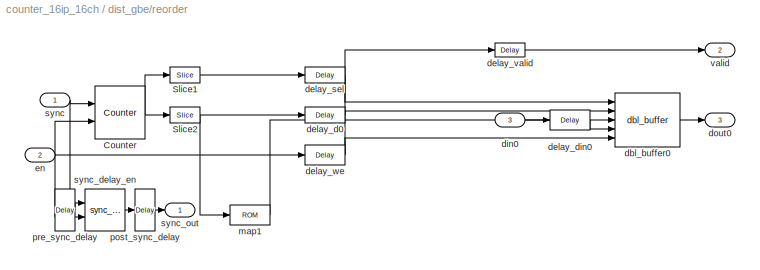
BLOCK [SubSystem] dist_gbe/reorder
  AncestorBlock = casper_library/Reorder/reorder
  AttributesFormatString = order=2
  MaskCallbackString = ||||
  MaskEnableString = on,on,on,on,on
  MaskIconFrame = on
  MaskIconOpaque = on
  MaskIconRotate = none
  MaskIconUnits = autoscale
  MaskInitialization = reorder_init(gcb, ...\n    'map', map, ...\n    'n_inputs', n_inputs, ...\n    'bram_latency', bram_latency, ...\n    'map_latency', map_latency, ...\n    'double_buffer', double_buffer);
  MaskPromptString = Output Order:|Number of inputs|BRAM Latency|Map Latency|Double Buffer
  MaskSelfModifiable = on
  MaskStyleString = edit,edit,edit,edit,edit
  MaskTabNameString = ,,,,
  MaskToolTipString = on,on,on,on,on
  MaskTunableValueString = on,on,on,on,on
  MaskType = reorder
  MaskValueString = [0 16 32 48 64 80 96 112 128 144 160 176 192 208 224 240 256 272 288 304 320 336 352 368 384 400 416 432 448 464 480 496 512 528 544 560 576 592 608 624 640 656 672 688 704 720 736 752 768 784 800 816 832 848 864 880 896 912 928 944 960 976 992 1008 1 17 33 49 65 81 97 113 129 145 161 177 193 209 225 241 257 273 289 305 321 337 353 369 385 401 417 433 449 465 481 497 513 529 545 561 577 593 609 62...<+3619ch>
  MaskVarAliasString = ,,,,
  MaskVariables = map=@1;n_inputs=@2;bram_latency=@3;map_latency=@4;double_buffer=@5;
  MaskVisibilityString = on,on,on,on,on
  MinAlgLoopOccurrences = off
  Ports = [3, 3]
  RTWSystemCode = Auto
  TreatAsAtomicUnit = off
  UserData = DataTag3
  UserDataPersistent = on
BLOCK [Reference] dist_gbe/reorder/Counter  REF=xbsIndex_r3/Counter
  Ports = [2, 1]
  SourceBlock = xbsIndex_r3/Counter
  SourceType = Xilinx Counter Block
  arith_type = Unsigned
  bin_pt = 0
  cnt_by_val = 1
  cnt_to = 2047
  cnt_type = Count Limited
  dbl_ovrd = off
  en = on
  explicit_period = off
  gen_core = off
  load_pin = off
  n_bits = 11
  operation = Up
  period = 1
  rst = on
  show_param = off
  start_count = 0
  use_rpm = on
  xl_area = [0, 0, 0, 0, 0, 0, 0]
  xl_use_area = off
BLOCK [Reference] dist_gbe/reorder/Slice1  REF=xbsIndex_r3/Slice
  Ports = [1, 1]
  SourceBlock = xbsIndex_r3/Slice
  SourceType = Xilinx Slice Block
  base0 = LSB of Input
  base1 = MSB of Input
  bit0 = 0
  bit1 = 0
  boolean_output = off
  dbl_ovrd = off
  explicit_period = off
  mode = Upper Bit Location + Width
  nbits = 1
  period = 1
BLOCK [Reference] dist_gbe/reorder/Slice2  REF=xbsIndex_r3/Slice
  Ports = [1, 1]
  SourceBlock = xbsIndex_r3/Slice
  SourceType = Xilinx Slice Block
  base0 = LSB of Input
  base1 = MSB of Input
  bit0 = 0
  bit1 = 0
  boolean_output = off
  dbl_ovrd = off
  explicit_period = off
  mode = Lower Bit Location + Width
  nbits = 10
  period = 1
BLOCK [Reference] dist_gbe/reorder/dbl_buffer0  REF=casper_library/Reorder/dbl_buffer  (lib defined in mdl_138b2fc3435f, mdl_4ed325b712b3, +2 more)
  Ports = [5, 1]
  ShowPortLabels = on
  SourceBlock = casper_library/Reorder/dbl_buffer
  SourceType = dbl_buffer
  depth = 1024
  latency = 2
BLOCK [Reference] dist_gbe/reorder/delay_d0  REF=xbsIndex_r3/Delay
  Ports = [1, 1]
  SourceBlock = xbsIndex_r3/Delay
  SourceType = Xilinx Delay Block
  accept_only_valid = off
  dbl_ovrd = off
  en = off
  explicit_period = off
  init_zero = on
  latency = 1
  period = 1
  reg_retiming = off
  show_param = off
  xl_area = [0, 0, 0, 0, 0, 0, 0]
  xl_use_area = off
BLOCK [Reference] dist_gbe/reorder/delay_din0  REF=xbsIndex_r3/Delay
  Ports = [1, 1]
  SourceBlock = xbsIndex_r3/Delay
  SourceType = Xilinx Delay Block
  accept_only_valid = off
  dbl_ovrd = off
  en = off
  explicit_period = off
  init_zero = on
  latency = 1
  period = 1
  reg_retiming = off
  show_param = off
  xl_area = [0, 0, 0, 0, 0, 0, 0]
  xl_use_area = off
BLOCK [Reference] dist_gbe/reorder/delay_sel  REF=xbsIndex_r3/Delay
  Ports = [1, 1]
  SourceBlock = xbsIndex_r3/Delay
  SourceType = Xilinx Delay Block
  accept_only_valid = off
  dbl_ovrd = off
  en = off
  explicit_period = off
  init_zero = on
  latency = 1
  period = 1
  reg_retiming = off
  show_param = off
  xl_area = [0, 0, 0, 0, 0, 0, 0]
  xl_use_area = off
BLOCK [Reference] dist_gbe/reorder/delay_valid  REF=xbsIndex_r3/Delay
  Ports = [1, 1]
  SourceBlock = xbsIndex_r3/Delay
  SourceType = Xilinx Delay Block
  accept_only_valid = off
  dbl_ovrd = off
  en = off
  explicit_period = off
  init_zero = on
  latency = 4
  period = 1
  reg_retiming = off
  show_param = off
  xl_area = [0, 0, 0, 0, 0, 0, 0]
  xl_use_area = off
BLOCK [Reference] dist_gbe/reorder/delay_we  REF=xbsIndex_r3/Delay
  Ports = [1, 1]
  SourceBlock = xbsIndex_r3/Delay
  SourceType = Xilinx Delay Block
  accept_only_valid = off
  dbl_ovrd = off
  en = off
  explicit_period = off
  init_zero = on
  latency = 1
  period = 1
  reg_retiming = off
  show_param = off
  xl_area = [0, 0, 0, 0, 0, 0, 0]
  xl_use_area = off
BLOCK [Inport] dist_gbe/reorder/din0
  IconDisplay = Port number
  LatchInput = off
  Port = 3
BLOCK [Outport] dist_gbe/reorder/dout0
  BusOutputAsStruct = off
  IconDisplay = Port number
  Port = 3
BLOCK [Inport] dist_gbe/reorder/en
  IconDisplay = Port number
  LatchInput = off
  Port = 2
BLOCK [Reference] dist_gbe/reorder/map1  REF=xbsIndex_r3/ROM
  Ports = [1, 1]
  SourceBlock = xbsIndex_r3/ROM
  SourceType = Xilinx Single Port Read-Only Memory
  arith_type = Unsigned
  bin_pt = 0
  dbl_ovrd = off
  depth = 1024
  distributed_mem = on
  en = off
  explicit_period = off
  gen_core = off
  initVector = [0 16 32 48 64 80 96 112 128 144 160 176 192 208 224 240 256 272 288 304 320 336 352 368 384 400 416 432 448 464 480 496 512 528 544 560 576 592 608 624 640 656 672 688 704 720 736 752 768 784 800 816 832 848 864 880 896 912 928 944 960 976 992 1008 1 17 33 49 65 81 97 113 129 145 161 177 193 209 225 241 257 273 289 305 321 337 353 369 385 401 417 433 449 465 481 497 513 529 545 561 577 593 609 62...<+3611ch>
  init_reg = 0
  init_zero = on
  latency = 1
  n_bits = 10
  period = 1
  rst = off
  show_param = off
  use_rpm = off
  xl_area = [0, 0, 0, 0, 0, 0, 0]
  xl_use_area = off
BLOCK [Reference] dist_gbe/reorder/post_sync_delay  REF=xbsIndex_r3/Delay
  Ports = [1, 1]
  SourceBlock = xbsIndex_r3/Delay
  SourceType = Xilinx Delay Block
  accept_only_valid = off
  dbl_ovrd = off
  en = off
  explicit_period = off
  init_zero = on
  latency = 4
  period = 1
  reg_retiming = off
  show_param = off
  xl_area = [0, 0, 0, 0, 0, 0, 0]
  xl_use_area = off
BLOCK [Reference] dist_gbe/reorder/pre_sync_delay  REF=xbsIndex_r3/Delay
  Ports = [1, 1]
  SourceBlock = xbsIndex_r3/Delay
  SourceType = Xilinx Delay Block
  accept_only_valid = off
  dbl_ovrd = off
  en = off
  explicit_period = off
  init_zero = on
  latency = 1
  period = 1
  reg_retiming = off
  show_param = off
  xl_area = [0, 0, 0, 0, 0, 0, 0]
  xl_use_area = off
BLOCK [Inport] dist_gbe/reorder/sync
  IconDisplay = Port number
  LatchInput = off
  Port = 1
BLOCK [Reference] dist_gbe/reorder/sync_delay_en  REF=casper_library/Delays/sync_delay_en  (lib defined in mdl_138b2fc3435f, mdl_4ed325b712b3, +2 more)
  DelayLen = 1024
  Ports = [2, 1]
  ShowPortLabels = on
  SourceBlock = casper_library/Delays/sync_delay_en
  SourceType = sync_delay_en
BLOCK [Outport] dist_gbe/reorder/sync_out
  BusOutputAsStruct = off
  IconDisplay = Port number
BLOCK [Outport] dist_gbe/reorder/valid
  BusOutputAsStruct = off
  IconDisplay = Port number
  Port = 2
BLOCK [Inport] dist_gbe/sync
  IconDisplay = Port number
  LatchInput = off
  Port = 1
BLOCK [Inport] dist_gbe/sys_counter
  IconDisplay = Port number
  LatchInput = off
  Port = 3
BLOCK [Reference] dist_gbe/ten_GbE0  REF=xps_library/ten_GbE  (lib defined in mdl_00b5cec29cd0, mdl_02ab6ecaa3d1, +5 more)
  Ports = [8, 10]
  ShowPortLabels = on
  SourceBlock = xps_library/ten_GbE
  SourceType = ten_GbE
  Tag = xps:tengbe
  mac_lite = on
  port = iBOB:0
  pre_emph = 2
  show_param = on
  swing = 800
BLOCK [Reference] dist_gbe/ten_GbE1  REF=xps_library/ten_GbE  (lib defined in mdl_00b5cec29cd0, mdl_02ab6ecaa3d1, +5 more)
  Ports = [8, 10]
  ShowPortLabels = on
  SourceBlock = xps_library/ten_GbE
  SourceType = ten_GbE
  Tag = xps:tengbe
  mac_lite = on
  port = iBOB:1
  pre_emph = 2
  show_param = on
  swing = 800
BLOCK [Reference] ibob_lwip  REF=xps_library/ibob_lwip  (lib defined in mdl_00b5cec29cd0, mdl_02ab6ecaa3d1, +5 more)
  Ports = []
  ShowPortLabels = on
  SourceBlock = xps_library/ibob_lwip
  SourceType = ibobethlite
BLOCK [Reference] led2_pps  REF=xps_library/gpio  (lib defined in mdl_00b5cec29cd0, mdl_02ab6ecaa3d1, +5 more)
  Ports = [1, 1]
  ShowPortLabels = on
  SourceBlock = xps_library/gpio
  SourceType = gpio
  Tag = xps:gpio
  arith_type = Boolean
  bin_pt = 0
  bit_index = 3
  bitwidth = 1
  io_dir = out
  io_group = iBOB:led
  reg_clk_phase = 0
  reg_iob = on
  sample_period = 1
  termination = None
  use_ddr = off
  use_single_ended = off
BLOCK [Reference] log_arm_pps  REF=xbsIndex_r3/Logical
  Ports = [2, 1]
  SourceBlock = xbsIndex_r3/Logical
  SourceType = Xilinx Logical Block
  align_bp = on
  arith_type = Unsigned
  bin_pt = 2
  dbl_ovrd = off
  en = off
  explicit_period = off
  inputs = 2
  latency = 0
  logical_function = AND
  n_bits = 8
  period = 1
  precision = Full
  show_param = off
  xl_area = [0, 0, 0, 0, 0, 0, 0]
  xl_use_area = off
BLOCK [Reference] posedge_arm  REF=casper_library/Misc/posedge  (lib defined in mdl_138b2fc3435f, mdl_4ed325b712b3, +2 more)
  Ports = [1, 1]
  ShowPortLabels = on
  SourceBlock = casper_library/Misc/posedge
  SourceType = posedge
  Tag = Rising Edge Detector
BLOCK [Reference] posedge_pps  REF=casper_library/Misc/posedge  (lib defined in mdl_138b2fc3435f, mdl_4ed325b712b3, +2 more)
  Ports = [1, 1]
  ShowPortLabels = on
  SourceBlock = casper_library/Misc/posedge
  SourceType = posedge
  Tag = Rising Edge Detector
BLOCK [Reference] pulse_ext  REF=casper_library/Misc/pulse_ext  (lib defined in mdl_138b2fc3435f, mdl_4ed325b712b3, +2 more)
  Ports = [1, 1]
  ShowPortLabels = on
  SourceBlock = casper_library/Misc/pulse_ext
  SourceType = pulse_ext
  pulse_len = 10000000
BLOCK [Reference] reg_arm  REF=xps_library/software register  (lib defined in mdl_00b5cec29cd0, mdl_02ab6ecaa3d1, +5 more)
  Ports = [1, 1]
  ShowPortLabels = on
  SourceBlock = xps_library/software register
  Tag = xps:sw_reg
  arith_type = Unsigned
  bin_pt = 0
  bitwidth = 32
  gw_name = counter_16ip_16ch_reg_arm_user_data_out
  io_dir = From Processor
  sample_period = 1
BLOCK [Reference] reg_reset_arm  REF=xbsIndex_r3/Register
  Ports = [3, 1]
  SourceBlock = xbsIndex_r3/Register
  SourceType = Xilinx Register Block
  dbl_ovrd = off
  en = on
  explicit_period = on
  init = 0
  out_en = off
  period = 1
  reg_only_valid = off
  rst = on
  show_param = off
  xl_area = [0, 0, 0, 0, 0, 0, 0]
  xl_use_area = off
BLOCK [Reference] reg_sync_period  REF=xps_library/software register  (lib defined in mdl_00b5cec29cd0, mdl_02ab6ecaa3d1, +5 more)
  Ports = [1, 1]
  ShowPortLabels = on
  SourceBlock = xps_library/software register
  Tag = xps:sw_reg
  arith_type = Unsigned
  bin_pt = 0
  bitwidth = 32
  gw_name = counter_16ip_16ch_reg_sync_period_user_data_out
  io_dir = From Processor
  sample_period = 1
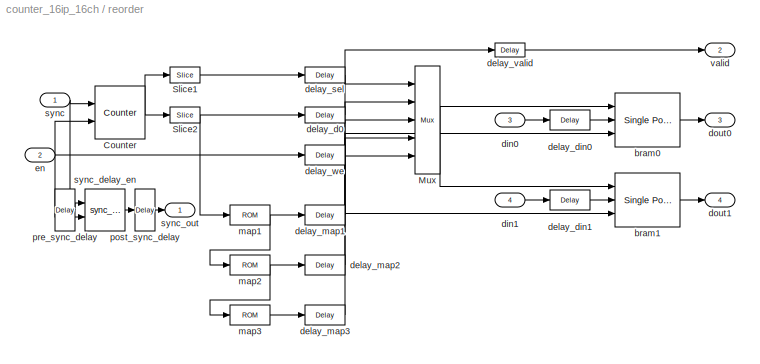
BLOCK [SubSystem] reorder
  AncestorBlock = casper_library/Reorder/reorder
  AttributesFormatString = order=4
  MaskCallbackString = ||||
  MaskEnableString = on,on,on,on,on
  MaskIconFrame = on
  MaskIconOpaque = on
  MaskIconRotate = none
  MaskIconUnits = autoscale
  MaskInitialization = reorder_init(gcb, ...\n    'map', map, ...\n    'n_inputs', n_inputs, ...\n    'bram_latency', bram_latency, ...\n    'map_latency', map_latency, ...\n    'double_buffer', double_buffer);
  MaskPromptString = Output Order:|Number of inputs|BRAM Latency|Map Latency|Double Buffer
  MaskSelfModifiable = on
  MaskStyleString = edit,edit,edit,edit,edit
  MaskTabNameString = ,,,,
  MaskToolTipString = on,on,on,on,on
  MaskTunableValueString = on,on,on,on,on
  MaskType = reorder
  MaskValueString = [0 8 1 9 2 10 3 11 4 12 5 13 6 14 7 15]|2|2|1|0
  MaskVarAliasString = ,,,,
  MaskVariables = map=@1;n_inputs=@2;bram_latency=@3;map_latency=@4;double_buffer=@5;
  MaskVisibilityString = on,on,on,on,on
  MinAlgLoopOccurrences = off
  Ports = [4, 4]
  RTWSystemCode = Auto
  TreatAsAtomicUnit = off
  UserData = DataTag4
  UserDataPersistent = on
BLOCK [Reference] reorder/Counter  REF=xbsIndex_r3/Counter
  Ports = [2, 1]
  SourceBlock = xbsIndex_r3/Counter
  SourceType = Xilinx Counter Block
  arith_type = Unsigned
  bin_pt = 0
  cnt_by_val = 1
  cnt_to = 63
  cnt_type = Count Limited
  dbl_ovrd = off
  en = on
  explicit_period = off
  gen_core = off
  load_pin = off
  n_bits = 6
  operation = Up
  period = 1
  rst = on
  show_param = off
  start_count = 0
  use_rpm = on
  xl_area = [0, 0, 0, 0, 0, 0, 0]
  xl_use_area = off
BLOCK [Reference] reorder/Mux  REF=xbsIndex_r3/Mux
  Ports = [5, 1]
  SourceBlock = xbsIndex_r3/Mux
  SourceType = Xilinx Multiplexer Block
  arith_type = Signed  (2's comp)
  bin_pt = 2
  dbl_ovrd = off
  en = off
  explicit_period = off
  gen_core = off
  inputs = 4
  latency = 1
  mux_type = off
  n_bits = 8
  overflow = Wrap
  period = 1
  precision = Full
  quantization = Truncate
  show_param = off
  use_rpm = off
  xl_area = [0, 0, 0, 0, 0, 0, 0]
  xl_use_area = off
BLOCK [Reference] reorder/Slice1  REF=xbsIndex_r3/Slice
  Ports = [1, 1]
  SourceBlock = xbsIndex_r3/Slice
  SourceType = Xilinx Slice Block
  base0 = LSB of Input
  base1 = MSB of Input
  bit0 = 0
  bit1 = 0
  boolean_output = off
  dbl_ovrd = off
  explicit_period = off
  mode = Upper Bit Location + Width
  nbits = 2
  period = 1
BLOCK [Reference] reorder/Slice2  REF=xbsIndex_r3/Slice
  Ports = [1, 1]
  SourceBlock = xbsIndex_r3/Slice
  SourceType = Xilinx Slice Block
  base0 = LSB of Input
  base1 = MSB of Input
  bit0 = 0
  bit1 = 0
  boolean_output = off
  dbl_ovrd = off
  explicit_period = off
  mode = Lower Bit Location + Width
  nbits = 4
  period = 1
BLOCK [Reference] reorder/bram0  REF=xbsIndex_r3/Single Port RAM
  Ports = [3, 1]
  SourceBlock = xbsIndex_r3/Single Port RAM
  SourceType = Xilinx Single Port Random Access Memory
  dbl_ovrd = off
  depth = 16
  distributed_mem = off
  en = off
  explicit_period = off
  gen_core = off
  initVector = sin(pi*(0:15)/16)
  init_reg = 0
  init_zero = on
  latency = 2
  period = 1
  rst = off
  show_param = off
  use_rpm = off
  write_mode = Read Before Write
  xl_area = [0, 0, 0, 0, 0, 0, 0]
  xl_use_area = off
BLOCK [Reference] reorder/bram1  REF=xbsIndex_r3/Single Port RAM
  Ports = [3, 1]
  SourceBlock = xbsIndex_r3/Single Port RAM
  SourceType = Xilinx Single Port Random Access Memory
  dbl_ovrd = off
  depth = 16
  distributed_mem = off
  en = off
  explicit_period = off
  gen_core = off
  initVector = sin(pi*(0:15)/16)
  init_reg = 0
  init_zero = on
  latency = 2
  period = 1
  rst = off
  show_param = off
  use_rpm = off
  write_mode = Read Before Write
  xl_area = [0, 0, 0, 0, 0, 0, 0]
  xl_use_area = off
BLOCK [Reference] reorder/delay_d0  REF=xbsIndex_r3/Delay
  Ports = [1, 1]
  SourceBlock = xbsIndex_r3/Delay
  SourceType = Xilinx Delay Block
  accept_only_valid = off
  dbl_ovrd = off
  en = off
  explicit_period = off
  init_zero = on
  latency = 3
  period = 1
  reg_retiming = off
  show_param = off
  xl_area = [0, 0, 0, 0, 0, 0, 0]
  xl_use_area = off
BLOCK [Reference] reorder/delay_din0  REF=xbsIndex_r3/Delay
  Ports = [1, 1]
  SourceBlock = xbsIndex_r3/Delay
  SourceType = Xilinx Delay Block
  accept_only_valid = off
  dbl_ovrd = off
  en = off
  explicit_period = off
  init_zero = on
  latency = 4
  period = 1
  reg_retiming = off
  show_param = off
  xl_area = [0, 0, 0, 0, 0, 0, 0]
  xl_use_area = off
BLOCK [Reference] reorder/delay_din1  REF=xbsIndex_r3/Delay
  Ports = [1, 1]
  SourceBlock = xbsIndex_r3/Delay
  SourceType = Xilinx Delay Block
  accept_only_valid = off
  dbl_ovrd = off
  en = off
  explicit_period = off
  init_zero = on
  latency = 4
  period = 1
  reg_retiming = off
  show_param = off
  xl_area = [0, 0, 0, 0, 0, 0, 0]
  xl_use_area = off
BLOCK [Reference] reorder/delay_map1  REF=xbsIndex_r3/Delay
  Ports = [1, 1]
  SourceBlock = xbsIndex_r3/Delay
  SourceType = Xilinx Delay Block
  accept_only_valid = off
  dbl_ovrd = off
  en = off
  explicit_period = off
  init_zero = on
  latency = 2*map_latency
  period = 1
  reg_retiming = off
  show_param = off
  xl_area = [0, 0, 0, 0, 0, 0, 0]
  xl_use_area = off
BLOCK [Reference] reorder/delay_map2  REF=xbsIndex_r3/Delay
  Ports = [1, 1]
  SourceBlock = xbsIndex_r3/Delay
  SourceType = Xilinx Delay Block
  accept_only_valid = off
  dbl_ovrd = off
  en = off
  explicit_period = off
  init_zero = on
  latency = 1*map_latency
  period = 1
  reg_retiming = off
  show_param = off
  xl_area = [0, 0, 0, 0, 0, 0, 0]
  xl_use_area = off
BLOCK [Reference] reorder/delay_map3  REF=xbsIndex_r3/Delay
  Ports = [1, 1]
  SourceBlock = xbsIndex_r3/Delay
  SourceType = Xilinx Delay Block
  accept_only_valid = off
  dbl_ovrd = off
  en = off
  explicit_period = off
  init_zero = on
  latency = 0*map_latency
  period = 1
  reg_retiming = off
  show_param = off
  xl_area = [0, 0, 0, 0, 0, 0, 0]
  xl_use_area = off
BLOCK [Reference] reorder/delay_sel  REF=xbsIndex_r3/Delay
  Ports = [1, 1]
  SourceBlock = xbsIndex_r3/Delay
  SourceType = Xilinx Delay Block
  accept_only_valid = off
  dbl_ovrd = off
  en = off
  explicit_period = off
  init_zero = on
  latency = 3
  period = 1
  reg_retiming = off
  show_param = off
  xl_area = [0, 0, 0, 0, 0, 0, 0]
  xl_use_area = off
BLOCK [Reference] reorder/delay_valid  REF=xbsIndex_r3/Delay
  Ports = [1, 1]
  SourceBlock = xbsIndex_r3/Delay
  SourceType = Xilinx Delay Block
  accept_only_valid = off
  dbl_ovrd = off
  en = off
  explicit_period = off
  init_zero = on
  latency = 3
  period = 1
  reg_retiming = off
  show_param = off
  xl_area = [0, 0, 0, 0, 0, 0, 0]
  xl_use_area = off
BLOCK [Reference] reorder/delay_we  REF=xbsIndex_r3/Delay
  Ports = [1, 1]
  SourceBlock = xbsIndex_r3/Delay
  SourceType = Xilinx Delay Block
  accept_only_valid = off
  dbl_ovrd = off
  en = off
  explicit_period = off
  init_zero = on
  latency = 3
  period = 1
  reg_retiming = off
  show_param = off
  xl_area = [0, 0, 0, 0, 0, 0, 0]
  xl_use_area = off
BLOCK [Inport] reorder/din0
  IconDisplay = Port number
  LatchInput = off
  Port = 3
BLOCK [Inport] reorder/din1
  IconDisplay = Port number
  LatchInput = off
  Port = 4
BLOCK [Outport] reorder/dout0
  BusOutputAsStruct = off
  IconDisplay = Port number
  Port = 3
BLOCK [Outport] reorder/dout1
  BusOutputAsStruct = off
  IconDisplay = Port number
  Port = 4
BLOCK [Inport] reorder/en
  IconDisplay = Port number
  LatchInput = off
  Port = 2
BLOCK [Reference] reorder/map1  REF=xbsIndex_r3/ROM
  Ports = [1, 1]
  SourceBlock = xbsIndex_r3/ROM
  SourceType = Xilinx Single Port Read-Only Memory
  arith_type = Unsigned
  bin_pt = 0
  dbl_ovrd = off
  depth = 16
  distributed_mem = on
  en = off
  explicit_period = off
  gen_core = off
  initVector = [0 8 1 9 2 10 3 11 4 12 5 13 6 14 7 15]
  init_reg = 0
  init_zero = on
  latency = 1
  n_bits = 4
  period = 1
  rst = off
  show_param = off
  use_rpm = off
  xl_area = [0, 0, 0, 0, 0, 0, 0]
  xl_use_area = off
BLOCK [Reference] reorder/map2  REF=xbsIndex_r3/ROM
  Ports = [1, 1]
  SourceBlock = xbsIndex_r3/ROM
  SourceType = Xilinx Single Port Read-Only Memory
  arith_type = Unsigned
  bin_pt = 0
  dbl_ovrd = off
  depth = 16
  distributed_mem = on
  en = off
  explicit_period = off
  gen_core = off
  initVector = [0 8 1 9 2 10 3 11 4 12 5 13 6 14 7 15]
  init_reg = 0
  init_zero = on
  latency = 1
  n_bits = 4
  period = 1
  rst = off
  show_param = off
  use_rpm = off
  xl_area = [0, 0, 0, 0, 0, 0, 0]
  xl_use_area = off
BLOCK [Reference] reorder/map3  REF=xbsIndex_r3/ROM
  Ports = [1, 1]
  SourceBlock = xbsIndex_r3/ROM
  SourceType = Xilinx Single Port Read-Only Memory
  arith_type = Unsigned
  bin_pt = 0
  dbl_ovrd = off
  depth = 16
  distributed_mem = on
  en = off
  explicit_period = off
  gen_core = off
  initVector = [0 8 1 9 2 10 3 11 4 12 5 13 6 14 7 15]
  init_reg = 0
  init_zero = on
  latency = 1
  n_bits = 4
  period = 1
  rst = off
  show_param = off
  use_rpm = off
  xl_area = [0, 0, 0, 0, 0, 0, 0]
  xl_use_area = off
BLOCK [Reference] reorder/post_sync_delay  REF=xbsIndex_r3/Delay
  Ports = [1, 1]
  SourceBlock = xbsIndex_r3/Delay
  SourceType = Xilinx Delay Block
  accept_only_valid = off
  dbl_ovrd = off
  en = off
  explicit_period = off
  init_zero = on
  latency = 3
  period = 1
  reg_retiming = off
  show_param = off
  xl_area = [0, 0, 0, 0, 0, 0, 0]
  xl_use_area = off
BLOCK [Reference] reorder/pre_sync_delay  REF=xbsIndex_r3/Delay
  Ports = [1, 1]
  SourceBlock = xbsIndex_r3/Delay
  SourceType = Xilinx Delay Block
  accept_only_valid = off
  dbl_ovrd = off
  en = off
  explicit_period = off
  init_zero = on
  latency = 3
  period = 1
  reg_retiming = off
  show_param = off
  xl_area = [0, 0, 0, 0, 0, 0, 0]
  xl_use_area = off
BLOCK [Inport] reorder/sync
  IconDisplay = Port number
  LatchInput = off
  Port = 1
BLOCK [Reference] reorder/sync_delay_en  REF=casper_library/Delays/sync_delay_en  (lib defined in mdl_138b2fc3435f, mdl_4ed325b712b3, +2 more)
  DelayLen = 16
  Ports = [2, 1]
  ShowPortLabels = on
  SourceBlock = casper_library/Delays/sync_delay_en
  SourceType = sync_delay_en
BLOCK [Outport] reorder/sync_out
  BusOutputAsStruct = off
  IconDisplay = Port number
BLOCK [Outport] reorder/valid
  BusOutputAsStruct = off
  IconDisplay = Port number
  Port = 2
BLOCK [DiscretePulseGenerator] sim_1pps
  Period = 1000
  Ports = [0, 1]
  PulseWidth = 3
BLOCK [Constant] sim_cns
  Value = 0.1
BLOCK [Constant] sim_cns1
  Value = 0.15
BLOCK [Step] sim_step_arm
  SampleTime = 0
BLOCK [Constant] sim_zero
  Value = 0
BLOCK [Reference] slc_arm  REF=xbsIndex_r3/Slice
  Ports = [1, 1]
  SourceBlock = xbsIndex_r3/Slice
  SourceType = Xilinx Slice Block
  base0 = LSB of Input
  base1 = MSB of Input
  bit0 = 0
  bit1 = 0
  boolean_output = on
  dbl_ovrd = off
  explicit_period = off
  mode = Lower Bit Location + Width
  nbits = 1
  period = 1
BLOCK [Reference] square_transposer  REF=casper_library/Reorder/square_transposer  (lib defined in mdl_138b2fc3435f, mdl_4ed325b712b3, +2 more)
  AttributesFormatString = n_inputs=1
  Ports = [3, 3]
  ShowPortLabels = on
  SourceBlock = casper_library/Reorder/square_transposer
  SourceType = square_transposer
  UserData = DataTag5
  UserDataPersistent = on
  n_inputs = 1
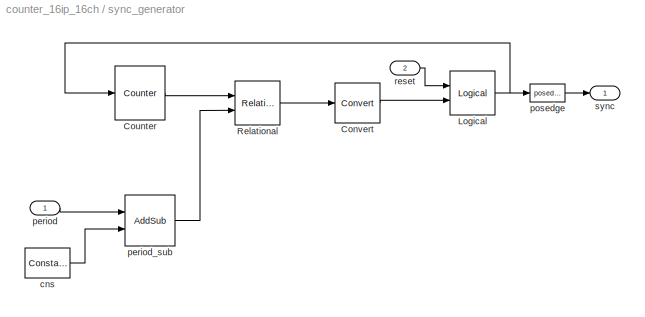
BLOCK [SubSystem] sync_generator
  MaskIconFrame = on
  MaskIconOpaque = on
  MaskIconRotate = none
  MaskIconUnits = autoscale
  MaskValueString = 0
  MinAlgLoopOccurrences = off
  Ports = [2, 1]
  RTWSystemCode = Auto
  TreatAsAtomicUnit = off
BLOCK [Reference] sync_generator/Convert  REF=xbsIndex_r3/Convert
  Ports = [1, 1]
  SourceBlock = xbsIndex_r3/Convert
  SourceType = Xilinx Converter Block
  arith_type = Boolean
  bin_pt = 6
  dbl_ovrd = off
  explicit_period = off
  inserted_by_tool = off
  latency = 1
  n_bits = 8
  overflow = Wrap
  period = 1
  pipeline = off
  quantization = Truncate
  show_param = off
  xl_area = [0, 0, 0, 0, 0, 0, 0]
  xl_use_area = off
BLOCK [Reference] sync_generator/Counter  REF=xbsIndex_r3/Counter
  Ports = [1, 1]
  SourceBlock = xbsIndex_r3/Counter
  SourceType = Xilinx Counter Block
  arith_type = Unsigned
  bin_pt = 0
  cnt_by_val = 1
  cnt_to = Inf
  cnt_type = Free Running
  dbl_ovrd = off
  en = off
  explicit_period = on
  gen_core = off
  load_pin = off
  n_bits = 32
  operation = Up
  period = 1
  rst = on
  show_param = off
  start_count = 1
  use_rpm = on
  xl_area = [0, 0, 0, 0, 0, 0, 0]
  xl_use_area = off
BLOCK [Reference] sync_generator/Logical  REF=xbsIndex_r3/Logical
  Ports = [2, 1]
  SourceBlock = xbsIndex_r3/Logical
  SourceType = Xilinx Logical Block
  align_bp = on
  arith_type = Unsigned
  bin_pt = 2
  dbl_ovrd = off
  en = off
  explicit_period = off
  inputs = 2
  latency = 0
  logical_function = OR
  n_bits = 8
  period = 1
  precision = Full
  show_param = off
  xl_area = [0, 0, 0, 0, 0, 0, 0]
  xl_use_area = off
BLOCK [Reference] sync_generator/Relational  REF=xbsIndex_r3/Relational
  Ports = [2, 1]
  SourceBlock = xbsIndex_r3/Relational
  SourceType = Xilinx Relational Block
  dbl_ovrd = off
  en = off
  explicit_period = off
  latency = 1
  mode = a>=b
  period = 1
  show_param = off
  xl_area = [0, 0, 0, 0, 0, 0, 0]
  xl_use_area = off
BLOCK [Reference] sync_generator/cns  REF=xbsIndex_r3/Constant
  Ports = [0, 1]
  SourceBlock = xbsIndex_r3/Constant
  SourceType = Xilinx Constant Block
  arith_type = Unsigned
  bin_pt = 0
  carry = CIN
  const = 4
  dbl_ovrd = off
  equ = P=C
  explicit_period = on
  inp1 = P
  inp2 = PCIN>>17
  iostate = 0
  n_bits = 3
  opr = +
  opselect = C
  period = 1
BLOCK [Inport] sync_generator/period
  IconDisplay = Port number
  LatchInput = off
  Port = 1
BLOCK [Reference] sync_generator/period_sub  REF=xbsIndex_r3/AddSub
  Ports = [2, 1]
  SourceBlock = xbsIndex_r3/AddSub
  SourceType = Xilinx Adder/Subtractor
  arith_type = Unsigned
  bin_pt = 0
  dbl_ovrd = off
  en = off
  explicit_period = off
  gen_core = off
  latency = 0
  mode = Subtraction
  n_bits = 32
  overflow = Wrap
  period = 1
  pipeline = off
  precision = User Defined
  quantization = Truncate
  show_param = off
  use_carryin = off
  use_carryout = off
  use_core = on
  use_rpm = on
  xl_area = [0, 0, 0, 0, 0, 0, 0]
  xl_use_area = off
BLOCK [Reference] sync_generator/posedge  REF=casper_library/Misc/posedge  (lib defined in mdl_138b2fc3435f, mdl_4ed325b712b3, +2 more)
  Ports = [1, 1]
  ShowPortLabels = on
  SourceBlock = casper_library/Misc/posedge
  SourceType = posedge
  Tag = Rising Edge Detector
BLOCK [Inport] sync_generator/reset
  IconDisplay = Port number
  LatchInput = off
  Port = 2
BLOCK [Outport] sync_generator/sync
  BusOutputAsStruct = off
  IconDisplay = Port number
BLOCK [Reference] sync_or  REF=xbsIndex_r3/Logical
  Ports = [4, 1]
  SourceBlock = xbsIndex_r3/Logical
  SourceType = Xilinx Logical Block
  align_bp = on
  arith_type = Unsigned
  bin_pt = 2
  dbl_ovrd = off
  en = off
  explicit_period = off
  inputs = 4
  latency = 1
  logical_function = OR
  n_bits = 8
  period = 1
  precision = Full
  show_param = off
  xl_area = [0, 0, 0, 0, 0, 0, 0]
  xl_use_area = off
BLOCK [Reference] system_counter  REF=xbsIndex_r3/Counter
  Ports = [1, 1]
  SourceBlock = xbsIndex_r3/Counter
  SourceType = Xilinx Counter Block
  arith_type = Unsigned
  bin_pt = 0
  cnt_by_val = 1
  cnt_to = Inf
  cnt_type = Free Running
  dbl_ovrd = off
  en = off
  explicit_period = off
  gen_core = off
  load_pin = off
  n_bits = 64
  operation = Up
  period = 1
  rst = on
  show_param = off
  start_count = 0
  use_rpm = on
  xl_area = [0, 0, 0, 0, 0, 0, 0]
  xl_use_area = off
ANNOTATION (root): ARM/PPS Reset Circuit\n1. User sets ARM high at half-second\n2. 1PPS arrives.\n3. PPSARMReset signal goes high for one clock on the 1PPS\n4. ARM is reset, and won't go high again until user brings it low then high
ANNOTATION dist_gbe: Delay the valid and data signals so that\nend-of-frame goes high for the last clock\nthat valid is high. This is a requirement for\nthe 10GbE block to work.
LINE Concat1:1 -> dist_gbe:2
LINE Counter1:1 -> reorder:4
LINE Counter:1 -> reorder:3
LINE FromPPS:1 -> log_arm_pps:1
LINE FromPPSARMReset:1 -> sync_generator:2
LINE Gateway Out1:1 -> Scope3:3
LINE Gateway Out2:1 -> Scope3:1
LINE Gateway Out3:1 -> Scope3:2
LINE Gateway Out6:1 -> Scope3:4
LINE Gateway Out8:1 -> Scope2:1
LINE adc:13 -> sync_or:1
LINE adc:14 -> sync_or:2
LINE adc:15 -> sync_or:3
LINE adc:16 -> sync_or:4
LINE cns_reset1:1 -> reorder:2
LINE cns_reset:1 -> reg_reset_arm:1
LINE cns_sync_period:1 -> reg_sync_period:1
NET dist_gbe/Expression1:1 -> dist_gbe/Gateway Out9:1, dist_gbe/ten_GbE1:6
NET dist_gbe/Expression:1 -> dist_gbe/Gateway Out37:1, dist_gbe/ten_GbE0:6
LINE dist_gbe/Gateway Out10:1 -> dist_gbe/Scope2:4
LINE dist_gbe/Gateway Out13:1 -> dist_gbe/Scope4:1
LINE dist_gbe/Gateway Out14:1 -> dist_gbe/Scope4:2
LINE dist_gbe/Gateway Out1:1 -> dist_gbe/Scope3:3
LINE dist_gbe/Gateway Out2:1 -> dist_gbe/Scope3:1
LINE dist_gbe/Gateway Out31:1 -> dist_gbe/Scope7:2
LINE dist_gbe/Gateway Out35:1 -> dist_gbe/Scope7:3
LINE dist_gbe/Gateway Out36:1 -> dist_gbe/Scope1:1
LINE dist_gbe/Gateway Out37:1 -> dist_gbe/Scope1:2
LINE dist_gbe/Gateway Out3:1 -> dist_gbe/Scope3:2
LINE dist_gbe/Gateway Out4:1 -> dist_gbe/Scope7:1
LINE dist_gbe/Gateway Out5:1 -> dist_gbe/Scope2:3
LINE dist_gbe/Gateway Out6:1 -> dist_gbe/Scope3:4
LINE dist_gbe/Gateway Out7:1 -> dist_gbe/Scope2:1
LINE dist_gbe/Gateway Out8:1 -> dist_gbe/Scope1:4
LINE dist_gbe/Gateway Out9:1 -> dist_gbe/Scope2:2
LINE dist_gbe/Gateway Out:1 -> dist_gbe/Scope1:3
LINE dist_gbe/Logical1:1 -> dist_gbe/ten_GbE1:7
LINE dist_gbe/Logical:1 -> dist_gbe/ten_GbE0:7
NET dist_gbe/Relational1:1 -> dist_gbe/Expression1:2, dist_gbe/Logical1:2
NET dist_gbe/Relational:1 -> dist_gbe/Expression:2, dist_gbe/Logical:2
LINE dist_gbe/Slice1:1 -> dist_gbe/ten_GbE0:5
LINE dist_gbe/Slice2:1 -> dist_gbe/Gateway Out5:1
LINE dist_gbe/Slice6:1 -> dist_gbe/ten_GbE1:5
LINE dist_gbe/Slice:1 -> dist_gbe/Gateway Out:1
NET dist_gbe/bs_delay1:1 -> dist_gbe/Gateway Out36:1, dist_gbe/ten_GbE0:3
LINE dist_gbe/bs_delay2:1 -> dist_gbe/mux_counter_data0:2
LINE dist_gbe/bs_delay3:1 -> dist_gbe/mux_id_even:1
NET dist_gbe/bs_delay4:1 -> dist_gbe/Gateway Out7:1, dist_gbe/ten_GbE1:3
LINE dist_gbe/bs_delay5:1 -> dist_gbe/mux_counter_data1:2
LINE dist_gbe/bs_delay6:1 -> dist_gbe/counter_id_even:1
NET dist_gbe/bs_delay7:1 -> dist_gbe/bs_delay3:1, dist_gbe/mux_counter_data1:1, dist_gbe/posedge_10GbE1:1
LINE dist_gbe/bs_delay8:1 -> dist_gbe/mux_id_odd:1
LINE dist_gbe/cns_mux_en0:1 -> dist_gbe/cnt_mux0:2
LINE dist_gbe/cns_mux_en1:1 -> dist_gbe/reorder:2
LINE dist_gbe/cns_mux_rel0:1 -> dist_gbe/rel0:2
NET dist_gbe/cns_zero_10GbE0:1 -> dist_gbe/ten_GbE0:1, dist_gbe/ten_GbE0:8
NET dist_gbe/cns_zero_10GbE1:1 -> dist_gbe/ten_GbE1:1, dist_gbe/ten_GbE1:8
LINE dist_gbe/cns_zero_ip1:1 -> dist_gbe/Relational1:2
LINE dist_gbe/cns_zero_ip:1 -> dist_gbe/Relational:2
NET dist_gbe/cnt_mux0:1 -> dist_gbe/Gateway Out31:1, dist_gbe/rel0:1
LINE dist_gbe/counter_id_even:1 -> dist_gbe/mux_id_even:3
LINE dist_gbe/counter_id_odd:1 -> dist_gbe/mux_id_odd:3
NET dist_gbe/data_in:1 -> dist_gbe/Gateway Out3:1, dist_gbe/reorder:3
LINE dist_gbe/ip_ctr/Count_Even:1 -> dist_gbe/ip_ctr/Counter_Even:2
LINE dist_gbe/ip_ctr/Count_Odd:1 -> dist_gbe/ip_ctr/Counter_Odd:2
NET dist_gbe/ip_ctr/Counter_Even:1 -> dist_gbe/ip_ctr/IPMux_Even:1, dist_gbe/ip_ctr/PortMux_Even:1
NET dist_gbe/ip_ctr/Counter_Odd:1 -> dist_gbe/ip_ctr/IPMux_Odd:1, dist_gbe/ip_ctr/PortMux_Odd:1
LINE dist_gbe/ip_ctr/Delay_Even:1 -> dist_gbe/ip_ctr/Counter_Even:1
LINE dist_gbe/ip_ctr/IPMux_Even:1 -> dist_gbe/ip_ctr/IP_Even:1
LINE dist_gbe/ip_ctr/IPMux_Odd:1 -> dist_gbe/ip_ctr/IP_Odd:1
LINE dist_gbe/ip_ctr/IP_Constant10:1 -> dist_gbe/ip_ctr/reg_ip10:1
LINE dist_gbe/ip_ctr/IP_Constant11:1 -> dist_gbe/ip_ctr/reg_ip11:1
LINE dist_gbe/ip_ctr/IP_Constant12:1 -> dist_gbe/ip_ctr/reg_ip12:1
LINE dist_gbe/ip_ctr/IP_Constant13:1 -> dist_gbe/ip_ctr/reg_ip13:1
LINE dist_gbe/ip_ctr/IP_Constant14:1 -> dist_gbe/ip_ctr/reg_ip14:1
LINE dist_gbe/ip_ctr/IP_Constant15:1 -> dist_gbe/ip_ctr/reg_ip15:1
LINE dist_gbe/ip_ctr/IP_Constant16:1 -> dist_gbe/ip_ctr/reg_ip16:1
LINE dist_gbe/ip_ctr/IP_Constant1:1 -> dist_gbe/ip_ctr/reg_ip1:1
LINE dist_gbe/ip_ctr/IP_Constant2:1 -> dist_gbe/ip_ctr/reg_ip2:1
LINE dist_gbe/ip_ctr/IP_Constant3:1 -> dist_gbe/ip_ctr/reg_ip3:1
LINE dist_gbe/ip_ctr/IP_Constant4:1 -> dist_gbe/ip_ctr/reg_ip4:1
LINE dist_gbe/ip_ctr/IP_Constant5:1 -> dist_gbe/ip_ctr/reg_ip5:1
LINE dist_gbe/ip_ctr/IP_Constant6:1 -> dist_gbe/ip_ctr/reg_ip6:1
LINE dist_gbe/ip_ctr/IP_Constant7:1 -> dist_gbe/ip_ctr/reg_ip7:1
LINE dist_gbe/ip_ctr/IP_Constant8:1 -> dist_gbe/ip_ctr/reg_ip8:1
LINE dist_gbe/ip_ctr/IP_Constant9:1 -> dist_gbe/ip_ctr/reg_ip9:1
LINE dist_gbe/ip_ctr/PortMux_Even:1 -> dist_gbe/ip_ctr/Port_Even:1
LINE dist_gbe/ip_ctr/PortMux_Odd:1 -> dist_gbe/ip_ctr/Port_Odd:1
LINE dist_gbe/ip_ctr/Port_Constant10:1 -> dist_gbe/ip_ctr/reg_port10:1
LINE dist_gbe/ip_ctr/Port_Constant11:1 -> dist_gbe/ip_ctr/reg_port11:1
LINE dist_gbe/ip_ctr/Port_Constant12:1 -> dist_gbe/ip_ctr/reg_port12:1
LINE dist_gbe/ip_ctr/Port_Constant13:1 -> dist_gbe/ip_ctr/reg_port13:1
LINE dist_gbe/ip_ctr/Port_Constant14:1 -> dist_gbe/ip_ctr/reg_port14:1
LINE dist_gbe/ip_ctr/Port_Constant15:1 -> dist_gbe/ip_ctr/reg_port15:1
LINE dist_gbe/ip_ctr/Port_Constant16:1 -> dist_gbe/ip_ctr/reg_port16:1
LINE dist_gbe/ip_ctr/Port_Constant1:1 -> dist_gbe/ip_ctr/reg_port1:1
LINE dist_gbe/ip_ctr/Port_Constant2:1 -> dist_gbe/ip_ctr/reg_port2:1
LINE dist_gbe/ip_ctr/Port_Constant3:1 -> dist_gbe/ip_ctr/reg_port3:1
LINE dist_gbe/ip_ctr/Port_Constant4:1 -> dist_gbe/ip_ctr/reg_port4:1
LINE dist_gbe/ip_ctr/Port_Constant5:1 -> dist_gbe/ip_ctr/reg_port5:1
LINE dist_gbe/ip_ctr/Port_Constant6:1 -> dist_gbe/ip_ctr/reg_port6:1
LINE dist_gbe/ip_ctr/Port_Constant7:1 -> dist_gbe/ip_ctr/reg_port7:1
LINE dist_gbe/ip_ctr/Port_Constant8:1 -> dist_gbe/ip_ctr/reg_port8:1
LINE dist_gbe/ip_ctr/Port_Constant9:1 -> dist_gbe/ip_ctr/reg_port9:1
NET dist_gbe/ip_ctr/Reset:1 -> dist_gbe/ip_ctr/Counter_Odd:1, dist_gbe/ip_ctr/Delay_Even:1
LINE dist_gbe/ip_ctr/reg_ip10:1 -> dist_gbe/ip_ctr/IPMux_Even:6
LINE dist_gbe/ip_ctr/reg_ip11:1 -> dist_gbe/ip_ctr/IPMux_Odd:7
LINE dist_gbe/ip_ctr/reg_ip12:1 -> dist_gbe/ip_ctr/IPMux_Even:7
LINE dist_gbe/ip_ctr/reg_ip13:1 -> dist_gbe/ip_ctr/IPMux_Odd:8
LINE dist_gbe/ip_ctr/reg_ip14:1 -> dist_gbe/ip_ctr/IPMux_Even:8
LINE dist_gbe/ip_ctr/reg_ip15:1 -> dist_gbe/ip_ctr/IPMux_Odd:9
LINE dist_gbe/ip_ctr/reg_ip16:1 -> dist_gbe/ip_ctr/IPMux_Even:9
LINE dist_gbe/ip_ctr/reg_ip1:1 -> dist_gbe/ip_ctr/IPMux_Odd:2
LINE dist_gbe/ip_ctr/reg_ip2:1 -> dist_gbe/ip_ctr/IPMux_Even:2
LINE dist_gbe/ip_ctr/reg_ip3:1 -> dist_gbe/ip_ctr/IPMux_Odd:3
LINE dist_gbe/ip_ctr/reg_ip4:1 -> dist_gbe/ip_ctr/IPMux_Even:3
LINE dist_gbe/ip_ctr/reg_ip5:1 -> dist_gbe/ip_ctr/IPMux_Odd:4
LINE dist_gbe/ip_ctr/reg_ip6:1 -> dist_gbe/ip_ctr/IPMux_Even:4
LINE dist_gbe/ip_ctr/reg_ip7:1 -> dist_gbe/ip_ctr/IPMux_Odd:5
LINE dist_gbe/ip_ctr/reg_ip8:1 -> dist_gbe/ip_ctr/IPMux_Even:5
LINE dist_gbe/ip_ctr/reg_ip9:1 -> dist_gbe/ip_ctr/IPMux_Odd:6
LINE dist_gbe/ip_ctr/reg_port10:1 -> dist_gbe/ip_ctr/PortMux_Even:6
LINE dist_gbe/ip_ctr/reg_port11:1 -> dist_gbe/ip_ctr/PortMux_Odd:7
LINE dist_gbe/ip_ctr/reg_port12:1 -> dist_gbe/ip_ctr/PortMux_Even:7
LINE dist_gbe/ip_ctr/reg_port13:1 -> dist_gbe/ip_ctr/PortMux_Odd:8
LINE dist_gbe/ip_ctr/reg_port14:1 -> dist_gbe/ip_ctr/PortMux_Even:8
LINE dist_gbe/ip_ctr/reg_port15:1 -> dist_gbe/ip_ctr/PortMux_Odd:9
LINE dist_gbe/ip_ctr/reg_port16:1 -> dist_gbe/ip_ctr/PortMux_Even:9
LINE dist_gbe/ip_ctr/reg_port1:1 -> dist_gbe/ip_ctr/PortMux_Odd:2
LINE dist_gbe/ip_ctr/reg_port2:1 -> dist_gbe/ip_ctr/PortMux_Even:2
LINE dist_gbe/ip_ctr/reg_port3:1 -> dist_gbe/ip_ctr/PortMux_Odd:3
LINE dist_gbe/ip_ctr/reg_port4:1 -> dist_gbe/ip_ctr/PortMux_Even:3
LINE dist_gbe/ip_ctr/reg_port5:1 -> dist_gbe/ip_ctr/PortMux_Odd:4
LINE dist_gbe/ip_ctr/reg_port6:1 -> dist_gbe/ip_ctr/PortMux_Even:4
LINE dist_gbe/ip_ctr/reg_port7:1 -> dist_gbe/ip_ctr/PortMux_Odd:5
LINE dist_gbe/ip_ctr/reg_port8:1 -> dist_gbe/ip_ctr/PortMux_Even:5
LINE dist_gbe/ip_ctr/reg_port9:1 -> dist_gbe/ip_ctr/PortMux_Odd:6
NET dist_gbe/ip_ctr:1 -> dist_gbe/Gateway Out8:1, dist_gbe/Relational:1, dist_gbe/ten_GbE0:4
LINE dist_gbe/ip_ctr:2 -> dist_gbe/Slice1:1
NET dist_gbe/ip_ctr:3 -> dist_gbe/Gateway Out10:1, dist_gbe/Relational1:1, dist_gbe/ten_GbE1:4
LINE dist_gbe/ip_ctr:4 -> dist_gbe/Slice6:1
LINE dist_gbe/led0_10gbe_up0:1 -> dist_gbe/led_up0:1
LINE dist_gbe/led0_10gbe_up1:1 -> dist_gbe/led_up1:1
LINE dist_gbe/mux_counter_data0:1 -> dist_gbe/mux_id_odd:2
LINE dist_gbe/mux_counter_data1:1 -> dist_gbe/mux_id_even:2
NET dist_gbe/mux_id_even:1 -> dist_gbe/Slice2:1, dist_gbe/ten_GbE1:2
NET dist_gbe/mux_id_odd:1 -> dist_gbe/Slice:1, dist_gbe/ten_GbE0:2
NET dist_gbe/negedge_10GbE0:1 -> dist_gbe/Expression:1, dist_gbe/Logical:1, dist_gbe/counter_id_odd:2, dist_gbe/ip_ctr:1
NET dist_gbe/negedge_10GbE1:1 -> dist_gbe/Expression1:1, dist_gbe/Gateway Out14:1, dist_gbe/Logical1:1, dist_gbe/counter_id_even:2, dist_gbe/ip_ctr:2
LINE dist_gbe/posedge_10GbE0:1 -> dist_gbe/pulse_ext_10GbE0:1
LINE dist_gbe/posedge_10GbE1:1 -> dist_gbe/pulse_ext_10GbE1:1
NET dist_gbe/pulse_ext_10GbE0:1 -> dist_gbe/bs_delay1:1, dist_gbe/negedge_10GbE0:1
NET dist_gbe/pulse_ext_10GbE1:1 -> dist_gbe/bs_delay4:1, dist_gbe/negedge_10GbE1:1
NET dist_gbe/rel0:1 -> dist_gbe/Gateway Out35:1, dist_gbe/bs_delay7:1, dist_gbe/bs_delay8:1, dist_gbe/mux_counter_data0:1, dist_gbe/posedge_10GbE0:1
NET dist_gbe/reorder/Counter:1 -> dist_gbe/reorder/Slice1:1, dist_gbe/reorder/Slice2:1
LINE dist_gbe/reorder/Slice1:1 -> dist_gbe/reorder/delay_sel:1
NET dist_gbe/reorder/Slice2:1 -> dist_gbe/reorder/delay_d0:1, dist_gbe/reorder/map1:1
LINE dist_gbe/reorder/dbl_buffer0:1 -> dist_gbe/reorder/dout0:1
LINE dist_gbe/reorder/delay_d0:1 -> dist_gbe/reorder/dbl_buffer0:2
LINE dist_gbe/reorder/delay_din0:1 -> dist_gbe/reorder/dbl_buffer0:4
LINE dist_gbe/reorder/delay_sel:1 -> dist_gbe/reorder/dbl_buffer0:1
LINE dist_gbe/reorder/delay_valid:1 -> dist_gbe/reorder/valid:1
NET dist_gbe/reorder/delay_we:1 -> dist_gbe/reorder/dbl_buffer0:5, dist_gbe/reorder/delay_valid:1
LINE dist_gbe/reorder/din0:1 -> dist_gbe/reorder/delay_din0:1
NET dist_gbe/reorder/en:1 -> dist_gbe/reorder/Counter:2, dist_gbe/reorder/delay_we:1, dist_gbe/reorder/sync_delay_en:2
LINE dist_gbe/reorder/map1:1 -> dist_gbe/reorder/dbl_buffer0:3
LINE dist_gbe/reorder/post_sync_delay:1 -> dist_gbe/reorder/sync_out:1
LINE dist_gbe/reorder/pre_sync_delay:1 -> dist_gbe/reorder/sync_delay_en:1
NET dist_gbe/reorder/sync:1 -> dist_gbe/reorder/Counter:1, dist_gbe/reorder/pre_sync_delay:1
LINE dist_gbe/reorder/sync_delay_en:1 -> dist_gbe/reorder/post_sync_delay:1
NET dist_gbe/reorder:1 -> dist_gbe/Gateway Out13:1, dist_gbe/Gateway Out1:1, dist_gbe/Gateway Out4:1, dist_gbe/bs_delay6:1, dist_gbe/cnt_mux0:1, dist_gbe/counter_id_odd:1, dist_gbe/ip_ctr:3
LINE dist_gbe/reorder:2 -> dist_gbe/Terminator18:1
NET dist_gbe/reorder:3 -> dist_gbe/Gateway Out6:1, dist_gbe/bs_delay2:1, dist_gbe/bs_delay5:1
NET dist_gbe/sync:1 -> dist_gbe/Gateway Out2:1, dist_gbe/reorder:1
NET dist_gbe/sys_counter:1 -> dist_gbe/mux_counter_data0:3, dist_gbe/mux_counter_data1:3
LINE dist_gbe/ten_GbE0:1 -> dist_gbe/led0_10gbe_up0:1
LINE dist_gbe/ten_GbE0:10 -> dist_gbe/Terminator8:1
LINE dist_gbe/ten_GbE0:2 -> dist_gbe/Terminator:1
LINE dist_gbe/ten_GbE0:3 -> dist_gbe/Terminator1:1
LINE dist_gbe/ten_GbE0:4 -> dist_gbe/Terminator2:1
LINE dist_gbe/ten_GbE0:5 -> dist_gbe/Terminator3:1
LINE dist_gbe/ten_GbE0:6 -> dist_gbe/Terminator4:1
LINE dist_gbe/ten_GbE0:7 -> dist_gbe/Terminator5:1
LINE dist_gbe/ten_GbE0:8 -> dist_gbe/Terminator6:1
LINE dist_gbe/ten_GbE0:9 -> dist_gbe/Terminator7:1
LINE dist_gbe/ten_GbE1:1 -> dist_gbe/led0_10gbe_up1:1
LINE dist_gbe/ten_GbE1:10 -> dist_gbe/Terminator17:1
LINE dist_gbe/ten_GbE1:2 -> dist_gbe/Terminator9:1
LINE dist_gbe/ten_GbE1:3 -> dist_gbe/Terminator10:1
LINE dist_gbe/ten_GbE1:4 -> dist_gbe/Terminator11:1
LINE dist_gbe/ten_GbE1:5 -> dist_gbe/Terminator12:1
LINE dist_gbe/ten_GbE1:6 -> dist_gbe/Terminator13:1
LINE dist_gbe/ten_GbE1:7 -> dist_gbe/Terminator14:1
LINE dist_gbe/ten_GbE1:8 -> dist_gbe/Terminator15:1
LINE dist_gbe/ten_GbE1:9 -> dist_gbe/Terminator16:1
NET log_arm_pps:1 -> GotoPPSARMReset:1, reg_reset_arm:2, system_counter:1
LINE posedge_arm:1 -> reg_reset_arm:3
NET posedge_pps:1 -> GotoPPS:1, pulse_ext:1
LINE pulse_ext:1 -> led2_pps:1
LINE reg_arm:1 -> slc_arm:1
LINE reg_reset_arm:1 -> log_arm_pps:2
LINE reg_sync_period:1 -> sync_generator:1
NET reorder/Counter:1 -> reorder/Slice1:1, reorder/Slice2:1
NET reorder/Mux:1 -> reorder/bram0:1, reorder/bram1:1
LINE reorder/Slice1:1 -> reorder/delay_sel:1
NET reorder/Slice2:1 -> reorder/delay_d0:1, reorder/map1:1
LINE reorder/bram0:1 -> reorder/dout0:1
LINE reorder/bram1:1 -> reorder/dout1:1
LINE reorder/delay_d0:1 -> reorder/Mux:2
LINE reorder/delay_din0:1 -> reorder/bram0:2
LINE reorder/delay_din1:1 -> reorder/bram1:2
LINE reorder/delay_map1:1 -> reorder/Mux:3
LINE reorder/delay_map2:1 -> reorder/Mux:4
LINE reorder/delay_map3:1 -> reorder/Mux:5
LINE reorder/delay_sel:1 -> reorder/Mux:1
LINE reorder/delay_valid:1 -> reorder/valid:1
NET reorder/delay_we:1 -> reorder/bram0:3, reorder/bram1:3, reorder/delay_valid:1
LINE reorder/din0:1 -> reorder/delay_din0:1
LINE reorder/din1:1 -> reorder/delay_din1:1
NET reorder/en:1 -> reorder/Counter:2, reorder/delay_we:1, reorder/sync_delay_en:2
NET reorder/map1:1 -> reorder/delay_map1:1, reorder/map2:1
NET reorder/map2:1 -> reorder/delay_map2:1, reorder/map3:1
LINE reorder/map3:1 -> reorder/delay_map3:1
LINE reorder/post_sync_delay:1 -> reorder/sync_out:1
LINE reorder/pre_sync_delay:1 -> reorder/sync_delay_en:1
NET reorder/sync:1 -> reorder/Counter:1, reorder/pre_sync_delay:1
LINE reorder/sync_delay_en:1 -> reorder/post_sync_delay:1
LINE reorder:1 -> square_transposer:1
LINE reorder:3 -> square_transposer:2
LINE reorder:4 -> square_transposer:3
LINE sim_cns1:1 -> adc:2
LINE sim_cns:1 -> adc:1
LINE sim_step_arm:1 -> reg_arm:1
NET sim_zero:1 -> adc:3, adc:4
LINE slc_arm:1 -> posedge_arm:1
NET square_transposer:1 -> Gateway Out2:1, dist_gbe:1
NET square_transposer:2 -> Concat1:1, Gateway Out3:1
NET square_transposer:3 -> Concat1:2, Gateway Out1:1
LINE sync_generator/Convert:1 -> sync_generator/Logical:2
LINE sync_generator/Counter:1 -> sync_generator/Relational:1
NET sync_generator/Logical:1 -> sync_generator/Counter:1, sync_generator/posedge:1
LINE sync_generator/Relational:1 -> sync_generator/Convert:1
LINE sync_generator/cns:1 -> sync_generator/period_sub:2
LINE sync_generator/period:1 -> sync_generator/period_sub:1
LINE sync_generator/period_sub:1 -> sync_generator/Relational:2
LINE sync_generator/posedge:1 -> sync_generator/sync:1
LINE sync_generator/reset:1 -> sync_generator/Logical:1
NET sync_generator:1 -> Counter1:1, Counter:1, Gateway Out8:1, reorder:1
LINE sync_or:1 -> posedge_pps:1
NET system_counter:1 -> Gateway Out6:1, dist_gbe:3
note: NET lines group one-source signal fan-out (src -> all destinations, sorted); 1:1 wires keep LINE
